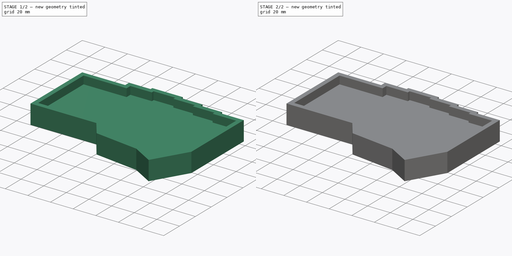
[diagram: build sequence overview — one tinted view per stage of 2, left to right]
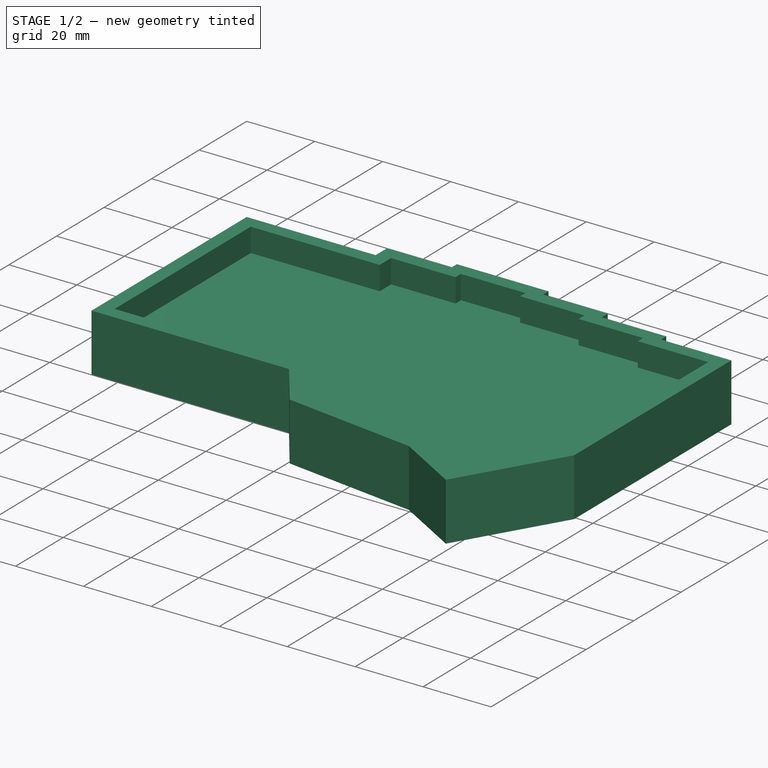
[diagram: stage 1 of 2 — iso view after this stage's code; geometry added in this stage tinted green]
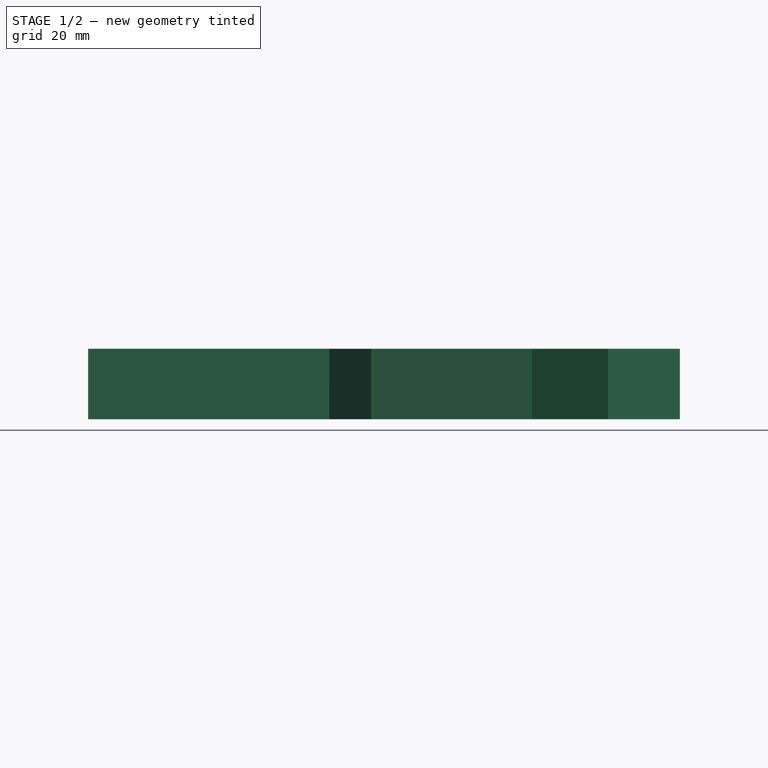
[diagram: stage 1 of 2 — front view after this stage's code; geometry added in this stage tinted green]
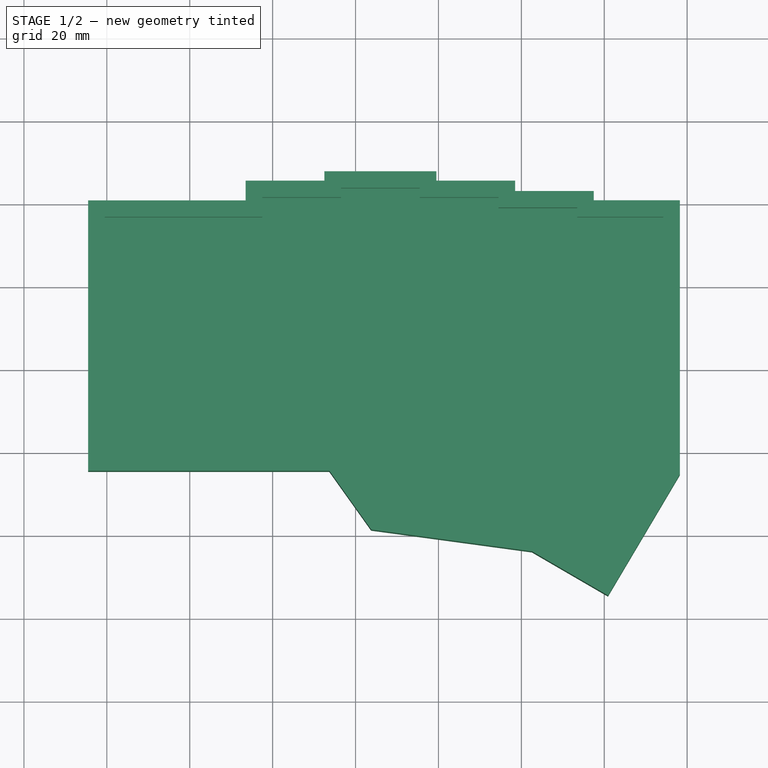
[diagram: stage 1 of 2 — top view after this stage's code; geometry added in this stage tinted green]
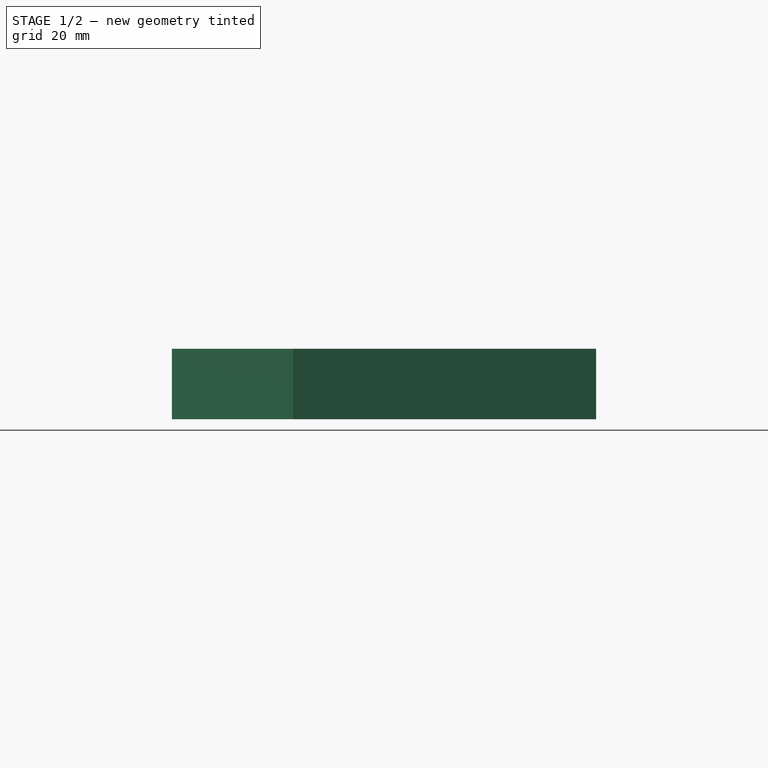
[diagram: stage 1 of 2 — right view after this stage's code; geometry added in this stage tinted green]
FCSTD DOCUMENT  (FreeCAD 0.21R33771 (Git))
Label: ParametricCase42
License: All rights reserved
LicenseURL: http://en.wikipedia.org/wiki/All_rights_reserved
objects: Sketcher::SketchObject×13, PartDesign::Body×3, Part::Part2DObjectPython×2, PartDesign::Pad×2, PartDesign::Pocket×2, Spreadsheet::Sheet×1, App::DocumentObjectGroup×1
note: 26 computed .brp shape members not serialized (recipe doc carries the construction recipe); baked Part::Feature solids carry a one-line shape summary decoded from their .brp

FEATURE [Sketcher::SketchObject] Sketch004  label="InnerBorder001"
  ExternalGeometry = -> [MirroredSketch017]
  FullyConstrained = true
  Placement = pos=(0,0,3.4) rot=(0,0,1;0rad)
  expr: .Placement.Base.z = Spreadsheet.PCBHeight + Spreadsheet.SwitchUnderPlateHeight - Spreadsheet.SwitchPlateHeight
  expr: Constraints[32] = Spreadsheet.PCBCaseSpacing
  expr: Constraints[33] = Spreadsheet.PCBCaseSpacing
  expr: Constraints[34] = Spreadsheet.PCBCaseSpacing
  expr: Constraints[35] = Spreadsheet.PCBCaseSpacing
  expr: Constraints[36] = Spreadsheet.PCBCaseSpacing
  expr: Constraints[37] = Spreadsheet.PCBCaseSpacing
  expr: Constraints[38] = Spreadsheet.PCBCaseSpacing
  expr: Constraints[39] = Spreadsheet.PCBCaseSpacing
  expr: Constraints[40] = Spreadsheet.PCBCaseSpacing
  expr: Constraints[41] = Spreadsheet.PCBCaseSpacing
  expr: Constraints[42] = Spreadsheet.PCBCaseSpacing
  expr: Constraints[43] = Spreadsheet.PCBCaseSpacing
  expr: Constraints[44] = Spreadsheet.PCBCaseSpacing
  expr: Constraints[45] = Spreadsheet.PCBCaseSpacing
  expr: Constraints[46] = Spreadsheet.PCBCaseSpacing
  expr: Constraints[47] = Spreadsheet.PCBCaseSpacing
  expr: Constraints[48] = Spreadsheet.PCBCaseSpacing
  expr: Constraints[49] = Spreadsheet.PCBCaseSpacing
  sketch-geometry (18):
    g0: LineSegment StartX=-0.5 StartY=56.75 StartZ=0 EndX=-0.5 EndY=-0.5 EndZ=0
    g1: LineSegment StartX=-0.5 StartY=-0.5 StartZ=0 EndX=55.4758 EndY=-0.5 EndZ=0
    g2: LineSegment StartX=55.4758 StartY=-0.5 StartZ=0 EndX=66.1812 EndY=-15.1753 EndZ=0
    g3: LineSegment StartX=66.1812 StartY=-15.1753 StartZ=0 EndX=103.799 EndY=-20.0677 EndZ=0
    g4: LineSegment StartX=103.799 StartY=-20.0677 StartZ=0 EndX=119.813 EndY=-29.3322 EndZ=0
    g5: LineSegment StartX=119.813 StartY=-29.3322 StartZ=0 EndX=134.23 EndY=-4.29099 EndZ=0
    g6: LineSegment StartX=134.23 StartY=-4.29099 StartZ=0 EndX=134.23 EndY=56.7527 EndZ=0
    g7: LineSegment StartX=134.23 StartY=56.7527 StartZ=0 EndX=113.48 EndY=56.7527 EndZ=0
    g8: LineSegment StartX=113.48 StartY=56.7527 StartZ=0 EndX=113.48 EndY=59.0027 EndZ=0
    g9: LineSegment StartX=113.48 StartY=59.0027 StartZ=0 EndX=94.49 EndY=59.0027 EndZ=0
    g10: LineSegment StartX=94.49 StartY=59.0027 StartZ=0 EndX=94.49 EndY=61.5027 EndZ=0
    g11: LineSegment StartX=94.49 StartY=61.5027 StartZ=0 EndX=75.49 EndY=61.5027 EndZ=0
    g12: LineSegment StartX=75.49 StartY=61.5027 StartZ=0 EndX=75.49 EndY=63.7527 EndZ=0
    g13: LineSegment StartX=75.49 StartY=63.7527 StartZ=0 EndX=56.49 EndY=63.7527 EndZ=0
    g14: LineSegment StartX=56.49 StartY=63.7527 StartZ=0 EndX=56.49 EndY=61.5027 EndZ=0
    g15: LineSegment StartX=56.49 StartY=61.5027 StartZ=0 EndX=37.48 EndY=61.5027 EndZ=0
    g16: LineSegment StartX=37.48 StartY=61.5027 StartZ=0 EndX=37.48 EndY=56.75 EndZ=0
    g17: LineSegment StartX=37.48 StartY=56.75 StartZ=0 EndX=-0.5 EndY=56.75 EndZ=0
  constraints (54):
    c: Coincident(g0,g1)
    c: Vertical(g0)
    c: Coincident(g1,g2)
    c: Horizontal(g1)
    c: Coincident(g2,g3)
    c: Coincident(g3,g4)
    c: Coincident(g4,g5)
    c: Coincident(g5,g6)
    c: Coincident(g6,g7)
    c: Vertical(g6)
    c: Coincident(g7,g8)
    c: Horizontal(g7)
    c: Coincident(g8,g9)
    c: Vertical(g8)
    c: Coincident(g9,g10)
    c: Horizontal(g9)
    c: Coincident(g10,g11)
    c: Vertical(g10)
    c: Coincident(g11,g12)
    c: Horizontal(g11)
    c: Coincident(g12,g13)
    c: Vertical(g12)
    c: Coincident(g13,g14)
    c: Horizontal(g13)
    c: Coincident(g14,g15)
    c: Vertical(g14)
    c: Coincident(g15,g16)
    c: Horizontal(g15)
    c: Coincident(g16,g17)
    c: Vertical(g16)
    c: Coincident(g17,g0)
    c: Horizontal(g17)
    c: Distance(g0,g-20) = 0.5
    c: Distance(g0,g-3) = 0.5
    c: Distance(g16,g-4) = 0.5
    c: Distance(g15,g-5) = 0.5
    c: Distance(g14,g-6) = 0.5
    c: Distance(g13,g-7) = 0.5
    c: Distance(g12,g-8) = 0.5
    c: Distance(g11,g-9) = 0.5
    c: Distance(g10,g-10) = 0.5
    c: Distance(g9,g-11) = 0.5
    c: Distance(g8,g-12) = 0.5
    c: Distance(g7,g-13) = 0.5
    c: Distance(g6,g-14) = 0.5
    c: Distance(g5,g-15) = 0.5
    c: Distance(g4,g-16) = 0.5
    c: Distance(g-17,g3) = 0.5
    c: Distance(g-18,g2) = 0.5
    c: Distance(g-19,g1) = 0.5
    c: Angle(g1,g2) = 2.20103
    c: Angle(g3,g2) = 2.33036
    c: Angle(g3,g4) = 2.74645
    c: Angle(g5,g4) = 1.5687
FEATURE [Sketcher::SketchObject] Sketch005  label="InnerBorder002"
  ExternalGeometry = -> [MirroredSketch017]
  FullyConstrained = true
  expr: Constraints[32] = Spreadsheet.PCBCaseSpacing
  expr: Constraints[33] = Spreadsheet.PCBCaseSpacing
  expr: Constraints[34] = Spreadsheet.PCBCaseSpacing
  expr: Constraints[35] = Spreadsheet.PCBCaseSpacing
  expr: Constraints[36] = Spreadsheet.PCBCaseSpacing
  expr: Constraints[37] = Spreadsheet.PCBCaseSpacing
  expr: Constraints[38] = Spreadsheet.PCBCaseSpacing
  expr: Constraints[39] = Spreadsheet.PCBCaseSpacing
  expr: Constraints[40] = Spreadsheet.PCBCaseSpacing
  expr: Constraints[41] = Spreadsheet.PCBCaseSpacing
  expr: Constraints[42] = Spreadsheet.PCBCaseSpacing
  expr: Constraints[43] = Spreadsheet.PCBCaseSpacing
  expr: Constraints[44] = Spreadsheet.PCBCaseSpacing
  expr: Constraints[45] = Spreadsheet.PCBCaseSpacing
  expr: Constraints[46] = Spreadsheet.PCBCaseSpacing
  expr: Constraints[47] = Spreadsheet.PCBCaseSpacing
  expr: Constraints[48] = Spreadsheet.PCBCaseSpacing
  expr: Constraints[49] = Spreadsheet.PCBCaseSpacing
  sketch-geometry (18):
    g0: LineSegment StartX=-0.5 StartY=56.75 StartZ=0 EndX=-0.5 EndY=-0.5 EndZ=0
    g1: LineSegment StartX=-0.5 StartY=-0.5 StartZ=0 EndX=55.4758 EndY=-0.5 EndZ=0
    g2: LineSegment StartX=55.4758 StartY=-0.5 StartZ=0 EndX=66.1812 EndY=-15.1753 EndZ=0
    g3: LineSegment StartX=66.1812 StartY=-15.1753 StartZ=0 EndX=103.799 EndY=-20.0677 EndZ=0
    g4: LineSegment StartX=103.799 StartY=-20.0677 StartZ=0 EndX=119.813 EndY=-29.3322 EndZ=0
    g5: LineSegment StartX=119.813 StartY=-29.3322 StartZ=0 EndX=134.23 EndY=-4.29099 EndZ=0
    g6: LineSegment StartX=134.23 StartY=-4.29099 StartZ=0 EndX=134.23 EndY=56.7527 EndZ=0
    g7: LineSegment StartX=134.23 StartY=56.7527 StartZ=0 EndX=113.48 EndY=56.7527 EndZ=0
    g8: LineSegment StartX=113.48 StartY=56.7527 StartZ=0 EndX=113.48 EndY=59.0027 EndZ=0
    g9: LineSegment StartX=113.48 StartY=59.0027 StartZ=0 EndX=94.49 EndY=59.0027 EndZ=0
    g10: LineSegment StartX=94.49 StartY=59.0027 StartZ=0 EndX=94.49 EndY=61.5027 EndZ=0
    g11: LineSegment StartX=94.49 StartY=61.5027 StartZ=0 EndX=75.49 EndY=61.5027 EndZ=0
    g12: LineSegment StartX=75.49 StartY=61.5027 StartZ=0 EndX=75.49 EndY=63.7527 EndZ=0
    g13: LineSegment StartX=75.49 StartY=63.7527 StartZ=0 EndX=56.49 EndY=63.7527 EndZ=0
    g14: LineSegment StartX=56.49 StartY=63.7527 StartZ=0 EndX=56.49 EndY=61.5027 EndZ=0
    g15: LineSegment StartX=56.49 StartY=61.5027 StartZ=0 EndX=37.48 EndY=61.5027 EndZ=0
    g16: LineSegment StartX=37.48 StartY=61.5027 StartZ=0 EndX=37.48 EndY=56.75 EndZ=0
    g17: LineSegment StartX=37.48 StartY=56.75 StartZ=0 EndX=-0.5 EndY=56.75 EndZ=0
  constraints (54):
    c: Coincident(g0,g1)
    c: Vertical(g0)
    c: Coincident(g1,g2)
    c: Horizontal(g1)
    c: Coincident(g2,g3)
    c: Coincident(g3,g4)
    c: Coincident(g4,g5)
    c: Coincident(g5,g6)
    c: Coincident(g6,g7)
    c: Vertical(g6)
    c: Coincident(g7,g8)
    c: Horizontal(g7)
    c: Coincident(g8,g9)
    c: Vertical(g8)
    c: Coincident(g9,g10)
    c: Horizontal(g9)
    c: Coincident(g10,g11)
    c: Vertical(g10)
    c: Coincident(g11,g12)
    c: Horizontal(g11)
    c: Coincident(g12,g13)
    c: Vertical(g12)
    c: Coincident(g13,g14)
    c: Horizontal(g13)
    c: Coincident(g14,g15)
    c: Vertical(g14)
    c: Coincident(g15,g16)
    c: Horizontal(g15)
    c: Coincident(g16,g17)
    c: Vertical(g16)
    c: Coincident(g17,g0)
    c: Horizontal(g17)
    c: Distance(g0,g-20) = 0.5
    c: Distance(g0,g-3) = 0.5
    c: Distance(g16,g-4) = 0.5
    c: Distance(g15,g-5) = 0.5
    c: Distance(g14,g-6) = 0.5
    c: Distance(g13,g-7) = 0.5
    c: Distance(g12,g-8) = 0.5
    c: Distance(g11,g-9) = 0.5
    c: Distance(g10,g-10) = 0.5
    c: Distance(g9,g-11) = 0.5
    c: Distance(g8,g-12) = 0.5
    c: Distance(g7,g-13) = 0.5
    c: Distance(g6,g-14) = 0.5
    c: Distance(g5,g-15) = 0.5
    c: Distance(g4,g-16) = 0.5
    c: Distance(g-17,g3) = 0.5
    c: Distance(g-18,g2) = 0.5
    c: Distance(g-19,g1) = 0.5
    c: Angle(g1,g2) = 2.20103
    c: Angle(g3,g2) = 2.33036
    c: Angle(g3,g4) = 2.74645
    c: Angle(g5,g4) = 1.5687
FEATURE [PartDesign::Body] Body  label="PCB"
  Group = -> [MirroredSketch017,Pad,Sketch005]
  Origin = -> Origin
  Tip = -> Pad
FEATURE [Sketcher::SketchObject] MirroredSketch019  label="Pcb001"
  FullyConstrained = true
  MapMode = 2
  sketch-geometry (18):
    g0: LineSegment StartX=0 StartY=56.25 StartZ=0 EndX=0 EndY=0 EndZ=0
    g1: LineSegment StartX=0 StartY=0 StartZ=0 EndX=55.73 EndY=0 EndZ=0
    g2: LineSegment StartX=55.73 StartY=0 StartZ=0 EndX=66.4586 EndY=-14.7072 EndZ=0
    g3: LineSegment StartX=66.4586 StartY=-14.7072 StartZ=0 EndX=103.963 EndY=-19.5848 EndZ=0
    g4: LineSegment StartX=103.963 StartY=-19.5848 StartZ=0 EndX=119.63 EndY=-28.6485 EndZ=0
    g5: LineSegment StartX=119.63 StartY=-28.6485 StartZ=0 EndX=133.73 EndY=-4.15734 EndZ=0
    g6: LineSegment StartX=133.73 StartY=-4.15734 StartZ=0 EndX=133.73 EndY=56.2527 EndZ=0
    g7: LineSegment StartX=133.73 StartY=56.2527 StartZ=0 EndX=112.98 EndY=56.2527 EndZ=0
    g8: LineSegment StartX=112.98 StartY=56.2527 StartZ=0 EndX=112.98 EndY=58.5027 EndZ=0
    g9: LineSegment StartX=112.98 StartY=58.5027 StartZ=0 EndX=93.99 EndY=58.5027 EndZ=0
    g10: LineSegment StartX=93.99 StartY=58.5027 StartZ=0 EndX=93.99 EndY=61.0027 EndZ=0
    g11: LineSegment StartX=93.99 StartY=61.0027 StartZ=0 EndX=74.99 EndY=61.0027 EndZ=0
    g12: LineSegment StartX=74.99 StartY=61.0027 StartZ=0 EndX=74.99 EndY=63.2527 EndZ=0
    g13: LineSegment StartX=74.99 StartY=63.2527 StartZ=0 EndX=56.99 EndY=63.2527 EndZ=0
    g14: LineSegment StartX=56.99 StartY=63.2527 StartZ=0 EndX=56.99 EndY=61.0027 EndZ=0
    g15: LineSegment StartX=56.99 StartY=61.0027 StartZ=0 EndX=37.98 EndY=61.0027 EndZ=0
    g16: LineSegment StartX=37.98 StartY=61.0027 StartZ=0 EndX=37.98 EndY=56.25 EndZ=0
    g17: LineSegment StartX=37.98 StartY=56.25 StartZ=0 EndX=0 EndY=56.25 EndZ=0
  constraints (54):
    c: Horizontal(g1)
    c: Vertical(g0)
    c: Coincident(g1,g0)
    c: Coincident(g1,g2)
    c: Coincident(g2,g3)
    c: Coincident(g3,g4)
    c: Coincident(g5,g4)
    c: Coincident(g5,g6)
    c: Coincident(g6,g7)
    c: Coincident(g7,g8)
    c: Coincident(g8,g9)
    c: Coincident(g10,g11)
    c: Coincident(g10,g9)
    c: Coincident(g12,g11)
    c: Coincident(g12,g13)
    c: Coincident(g13,g14)
    c: Coincident(g14,g15)
    c: Coincident(g15,g16)
    c: Coincident(g16,g17)
    c: Coincident(g17,g0)
    c: Vertical(g6)
    c: Horizontal(g7)
    c: Horizontal(g9)
    c: Horizontal(g11)
    c: Horizontal(g13)
    c: Horizontal(g15)
    c: Horizontal(g17)
    c: Vertical(g16)
    c: Vertical(g14)
    c: Vertical(g12)
    c: Vertical(g10)
    c: Vertical(g8)
    c: Angle(g5,g6) = -2.61922
    c: Angle(g4,g5) = -1.5687
    c: Angle(g4,g3) = -2.74645
    c: Angle(g2,g3) = -2.33036
    c: Distance(g1) = 55.73
    c: Distance(g0) = 56.25
    c: Distance(g17) = 37.98
    c: Distance(g15) = 19.01
    c: Distance(g13) = 18
    c: Distance(g11) = 19
    c: Distance(g9) = 18.99
    c: Distance(g7) = 20.75
    c: Distance(g6) = 60.41
    c: Distance(g5) = 28.26
    c: Distance(g4) = 18.1
    c: Distance(g3) = 37.82
    c: Distance(g8) = 2.25
    c: Distance(g10) = 2.5
    c: Distance(g12) = 2.25
    c: Distance(g14) = 2.25
    c: DistanceX(g-2,g0) = 0
    c: DistanceY(g-1,g0) = 0
FEATURE [Sketcher::SketchObject] Sketch006  label="InnerBorder003"
  ExternalGeometry = -> [MirroredSketch019]
  FullyConstrained = true
  Placement = pos=(0,0,17) rot=(0,0,1;0rad)
  expr: .Placement.Base.z = Spreadsheet.CaseOverallHeight
  expr: Constraints[32] = Spreadsheet.PCBCaseSpacing
  expr: Constraints[33] = Spreadsheet.PCBCaseSpacing
  expr: Constraints[34] = Spreadsheet.PCBCaseSpacing
  expr: Constraints[35] = Spreadsheet.PCBCaseSpacing
  expr: Constraints[36] = Spreadsheet.PCBCaseSpacing
  expr: Constraints[37] = Spreadsheet.PCBCaseSpacing
  expr: Constraints[38] = Spreadsheet.PCBCaseSpacing
  expr: Constraints[39] = Spreadsheet.PCBCaseSpacing
  expr: Constraints[40] = Spreadsheet.PCBCaseSpacing
  expr: Constraints[41] = Spreadsheet.PCBCaseSpacing
  expr: Constraints[42] = Spreadsheet.PCBCaseSpacing
  expr: Constraints[43] = Spreadsheet.PCBCaseSpacing
  expr: Constraints[44] = Spreadsheet.PCBCaseSpacing
  expr: Constraints[45] = Spreadsheet.PCBCaseSpacing
  expr: Constraints[46] = Spreadsheet.PCBCaseSpacing
  expr: Constraints[47] = Spreadsheet.PCBCaseSpacing
  expr: Constraints[48] = Spreadsheet.PCBCaseSpacing
  expr: Constraints[49] = Spreadsheet.PCBCaseSpacing
  sketch-geometry (18):
    g0: LineSegment StartX=-0.5 StartY=56.75 StartZ=0 EndX=-0.5 EndY=-0.5 EndZ=0
    g1: LineSegment StartX=-0.5 StartY=-0.5 StartZ=0 EndX=55.4758 EndY=-0.5 EndZ=0
    g2: LineSegment StartX=55.4758 StartY=-0.5 StartZ=0 EndX=66.1812 EndY=-15.1753 EndZ=0
    g3: LineSegment StartX=66.1812 StartY=-15.1753 StartZ=0 EndX=103.799 EndY=-20.0677 EndZ=0
    g4: LineSegment StartX=103.799 StartY=-20.0677 StartZ=0 EndX=119.813 EndY=-29.3322 EndZ=0
    g5: LineSegment StartX=119.813 StartY=-29.3322 StartZ=0 EndX=134.23 EndY=-4.29099 EndZ=0
    g6: LineSegment StartX=134.23 StartY=-4.29099 StartZ=0 EndX=134.23 EndY=56.7527 EndZ=0
    g7: LineSegment StartX=134.23 StartY=56.7527 StartZ=0 EndX=113.48 EndY=56.7527 EndZ=0
    g8: LineSegment StartX=113.48 StartY=56.7527 StartZ=0 EndX=113.48 EndY=59.0027 EndZ=0
    g9: LineSegment StartX=113.48 StartY=59.0027 StartZ=0 EndX=94.49 EndY=59.0027 EndZ=0
    g10: LineSegment StartX=94.49 StartY=59.0027 StartZ=0 EndX=94.49 EndY=61.5027 EndZ=0
    g11: LineSegment StartX=94.49 StartY=61.5027 StartZ=0 EndX=75.49 EndY=61.5027 EndZ=0
    g12: LineSegment StartX=75.49 StartY=61.5027 StartZ=0 EndX=75.49 EndY=63.7527 EndZ=0
    g13: LineSegment StartX=75.49 StartY=63.7527 StartZ=0 EndX=56.49 EndY=63.7527 EndZ=0
    g14: LineSegment StartX=56.49 StartY=63.7527 StartZ=0 EndX=56.49 EndY=61.5027 EndZ=0
    g15: LineSegment StartX=56.49 StartY=61.5027 StartZ=0 EndX=37.48 EndY=61.5027 EndZ=0
    g16: LineSegment StartX=37.48 StartY=61.5027 StartZ=0 EndX=37.48 EndY=56.75 EndZ=0
    g17: LineSegment StartX=37.48 StartY=56.75 StartZ=0 EndX=-0.5 EndY=56.75 EndZ=0
  constraints (54):
    c: Coincident(g0,g1)
    c: Vertical(g0)
    c: Coincident(g1,g2)
    c: Horizontal(g1)
    c: Coincident(g2,g3)
    c: Coincident(g3,g4)
    c: Coincident(g4,g5)
    c: Coincident(g5,g6)
    c: Coincident(g6,g7)
    c: Vertical(g6)
    c: Coincident(g7,g8)
    c: Horizontal(g7)
    c: Coincident(g8,g9)
    c: Vertical(g8)
    c: Coincident(g9,g10)
    c: Horizontal(g9)
    c: Coincident(g10,g11)
    c: Vertical(g10)
    c: Coincident(g11,g12)
    c: Horizontal(g11)
    c: Coincident(g12,g13)
    c: Vertical(g12)
    c: Coincident(g13,g14)
    c: Horizontal(g13)
    c: Coincident(g14,g15)
    c: Vertical(g14)
    c: Coincident(g15,g16)
    c: Horizontal(g15)
    c: Coincident(g16,g17)
    c: Vertical(g16)
    c: Coincident(g17,g0)
    c: Horizontal(g17)
    c: Distance(g0,g-20) = 0.5
    c: Distance(g0,g-3) = 0.5
    c: Distance(g16,g-4) = 0.5
    c: Distance(g15,g-5) = 0.5
    c: Distance(g14,g-6) = 0.5
    c: Distance(g13,g-7) = 0.5
    c: Distance(g12,g-8) = 0.5
    c: Distance(g11,g-9) = 0.5
    c: Distance(g10,g-10) = 0.5
    c: Distance(g9,g-11) = 0.5
    c: Distance(g8,g-12) = 0.5
    c: Distance(g7,g-13) = 0.5
    c: Distance(g6,g-14) = 0.5
    c: Distance(g5,g-15) = 0.5
    c: Distance(g4,g-16) = 0.5
    c: Distance(g-17,g3) = 0.5
    c: Distance(g-18,g2) = 0.5
    c: Distance(g-19,g1) = 0.5
    c: Angle(g1,g2) = 2.20103
    c: Angle(g3,g2) = 2.33036
    c: Angle(g3,g4) = 2.74645
    c: Angle(g5,g4) = 1.5687
FEATURE [Sketcher::SketchObject] Sketch007  label="OuterBorder001"
  ExternalGeometry = -> [Sketch006]
  FullyConstrained = true
  expr: Constraints[32] = Spreadsheet.CaseBorderWidth
  expr: Constraints[33] = Spreadsheet.CaseBorderWidth
  expr: Constraints[34] = Spreadsheet.CaseBorderWidth
  expr: Constraints[35] = Spreadsheet.CaseBorderWidth
  expr: Constraints[36] = Spreadsheet.CaseBorderWidth
  expr: Constraints[37] = Spreadsheet.CaseBorderWidth
  expr: Constraints[38] = Spreadsheet.CaseBorderWidth
  expr: Constraints[39] = Spreadsheet.CaseBorderWidth
  expr: Constraints[40] = Spreadsheet.CaseBorderWidth
  expr: Constraints[41] = Spreadsheet.CaseBorderWidth
  expr: Constraints[42] = Spreadsheet.CaseBorderWidth
  expr: Constraints[43] = Spreadsheet.CaseBorderWidth
  expr: Constraints[44] = Spreadsheet.CaseBorderWidth
  expr: Constraints[45] = Spreadsheet.CaseBorderWidth
  expr: Constraints[46] = Spreadsheet.CaseBorderWidth
  expr: Constraints[47] = Spreadsheet.CaseBorderWidth
  expr: Constraints[48] = Spreadsheet.CaseBorderWidth
  expr: Constraints[49] = Spreadsheet.CaseBorderWidth
  sketch-geometry (18):
    g0: LineSegment StartX=-4.5 StartY=60.75 StartZ=0 EndX=-4.5 EndY=-4.5 EndZ=0
    g1: LineSegment StartX=-4.5 StartY=-4.5 StartZ=0 EndX=53.6669 EndY=-4.5 EndZ=0
    g2: LineSegment StartX=53.6669 StartY=-4.5 StartZ=0 EndX=63.7645 EndY=-18.6772 EndZ=0
    g3: LineSegment StartX=63.7645 StartY=-18.6772 StartZ=0 EndX=102.56 EndY=-23.9363 EndZ=0
    g4: LineSegment StartX=102.56 StartY=-23.9363 StartZ=0 EndX=120.907 EndY=-34.5933 EndZ=0
    g5: LineSegment StartX=120.907 StartY=-34.5933 StartZ=0 EndX=138.23 EndY=-5.36017 EndZ=0
    g6: LineSegment StartX=138.23 StartY=-5.36017 StartZ=0 EndX=138.23 EndY=60.7527 EndZ=0
    g7: LineSegment StartX=138.23 StartY=60.7527 StartZ=0 EndX=117.48 EndY=60.7527 EndZ=0
    g8: LineSegment StartX=117.48 StartY=60.7527 StartZ=0 EndX=117.48 EndY=63.0027 EndZ=0
    g9: LineSegment StartX=117.48 StartY=63.0027 StartZ=0 EndX=98.49 EndY=63.0027 EndZ=0
    g10: LineSegment StartX=98.49 StartY=63.0027 StartZ=0 EndX=98.49 EndY=65.5027 EndZ=0
    g11: LineSegment StartX=98.49 StartY=65.5027 StartZ=0 EndX=79.49 EndY=65.5027 EndZ=0
    g12: LineSegment StartX=79.49 StartY=65.5027 StartZ=0 EndX=79.49 EndY=67.7527 EndZ=0
    g13: LineSegment StartX=79.49 StartY=67.7527 StartZ=0 EndX=52.49 EndY=67.7527 EndZ=0
    g14: LineSegment StartX=52.49 StartY=67.7527 StartZ=0 EndX=52.49 EndY=65.5027 EndZ=0
    g15: LineSegment StartX=52.49 StartY=65.5027 StartZ=0 EndX=33.48 EndY=65.5027 EndZ=0
    g16: LineSegment StartX=33.48 StartY=65.5027 StartZ=0 EndX=33.48 EndY=60.75 EndZ=0
    g17: LineSegment StartX=33.48 StartY=60.75 StartZ=0 EndX=-4.5 EndY=60.75 EndZ=0
  constraints (54):
    c: Coincident(g0,g1)
    c: Vertical(g0)
    c: Coincident(g1,g2)
    c: Horizontal(g1)
    c: Coincident(g2,g3)
    c: Coincident(g3,g4)
    c: Coincident(g4,g5)
    c: Coincident(g5,g6)
    c: Coincident(g6,g7)
    c: Vertical(g6)
    c: Coincident(g7,g8)
    c: Horizontal(g7)
    c: Coincident(g8,g9)
    c: Vertical(g8)
    c: Coincident(g9,g10)
    c: Horizontal(g9)
    c: Coincident(g10,g11)
    c: Vertical(g10)
    c: Coincident(g11,g12)
    c: Horizontal(g11)
    c: Coincident(g12,g13)
    c: Vertical(g12)
    c: Coincident(g13,g14)
    c: Horizontal(g13)
    c: Coincident(g14,g15)
    c: Vertical(g14)
    c: Coincident(g15,g16)
    c: Horizontal(g15)
    c: Coincident(g16,g17)
    c: Vertical(g16)
    c: Coincident(g17,g0)
    c: Horizontal(g17)
    c: Distance(g0,g-3) = 4
    c: Distance(g0,g-20) = 4
    c: Distance(g16,g-4) = 4
    c: Distance(g15,g-5) = 4
    c: Distance(g14,g-6) = 4
    c: Distance(g13,g-7) = 4
    c: Distance(g11,g-8) = 4
    c: Distance(g11,g-9) = 4
    c: Distance(g10,g-10) = 4
    c: Distance(g9,g-11) = 4
    c: Distance(g-12,g8) = 4
    c: Distance(g7,g-13) = 4
    c: Distance(g6,g-14) = 4
    c: Distance(g5,g-15) = 4
    c: Distance(g-16,g4) = 4
    c: Distance(g-17,g3) = 4
    c: Distance(g-18,g2) = 4
    c: Distance(g-19,g1) = 4
    c: Angle(g6,g5) = 2.60665
    c: Angle(g5,g4) = 1.57952
    c: Angle(g3,g4) = 2.75012
    c: Angle(g3,g2) = 2.32443
FEATURE [PartDesign::Pad] Pad002
  Direction = (0,0,1)
  Length = 17
  Length2 = 10
  Profile = -> Sketch007
  ReferenceAxis = -> Sketch007 [N_Axis]
  Type = 0
  expr: Length = Spreadsheet.CaseOverallHeight
FEATURE [Sketcher::SketchObject] Sketch008  label="InnerBorder004"
  ExternalGeometry = -> [MirroredSketch019]
  FullyConstrained = true
  expr: Constraints[32] = Spreadsheet.PCBCaseSpacing
  expr: Constraints[33] = Spreadsheet.PCBCaseSpacing
  expr: Constraints[34] = Spreadsheet.PCBCaseSpacing
  expr: Constraints[35] = Spreadsheet.PCBCaseSpacing
  expr: Constraints[36] = Spreadsheet.PCBCaseSpacing
  expr: Constraints[37] = Spreadsheet.PCBCaseSpacing
  expr: Constraints[38] = Spreadsheet.PCBCaseSpacing
  expr: Constraints[39] = Spreadsheet.PCBCaseSpacing
  expr: Constraints[40] = Spreadsheet.PCBCaseSpacing
  expr: Constraints[41] = Spreadsheet.PCBCaseSpacing
  expr: Constraints[42] = Spreadsheet.PCBCaseSpacing
  expr: Constraints[43] = Spreadsheet.PCBCaseSpacing
  expr: Constraints[44] = Spreadsheet.PCBCaseSpacing
  expr: Constraints[45] = Spreadsheet.PCBCaseSpacing
  expr: Constraints[46] = Spreadsheet.PCBCaseSpacing
  expr: Constraints[47] = Spreadsheet.PCBCaseSpacing
  expr: Constraints[48] = Spreadsheet.PCBCaseSpacing
  expr: Constraints[49] = Spreadsheet.PCBCaseSpacing
  sketch-geometry (18):
    g0: LineSegment StartX=-0.5 StartY=56.75 StartZ=0 EndX=-0.5 EndY=-0.5 EndZ=0
    g1: LineSegment StartX=-0.5 StartY=-0.5 StartZ=0 EndX=55.4758 EndY=-0.5 EndZ=0
    g2: LineSegment StartX=55.4758 StartY=-0.5 StartZ=0 EndX=66.1812 EndY=-15.1753 EndZ=0
    g3: LineSegment StartX=66.1812 StartY=-15.1753 StartZ=0 EndX=103.799 EndY=-20.0677 EndZ=0
    g4: LineSegment StartX=103.799 StartY=-20.0677 StartZ=0 EndX=119.813 EndY=-29.3322 EndZ=0
    g5: LineSegment StartX=119.813 StartY=-29.3322 StartZ=0 EndX=134.23 EndY=-4.29099 EndZ=0
    g6: LineSegment StartX=134.23 StartY=-4.29099 StartZ=0 EndX=134.23 EndY=56.7527 EndZ=0
    g7: LineSegment StartX=134.23 StartY=56.7527 StartZ=0 EndX=113.48 EndY=56.7527 EndZ=0
    g8: LineSegment StartX=113.48 StartY=56.7527 StartZ=0 EndX=113.48 EndY=59.0027 EndZ=0
    g9: LineSegment StartX=113.48 StartY=59.0027 StartZ=0 EndX=94.49 EndY=59.0027 EndZ=0
    g10: LineSegment StartX=94.49 StartY=59.0027 StartZ=0 EndX=94.49 EndY=61.5027 EndZ=0
    g11: LineSegment StartX=94.49 StartY=61.5027 StartZ=0 EndX=75.49 EndY=61.5027 EndZ=0
    g12: LineSegment StartX=75.49 StartY=61.5027 StartZ=0 EndX=75.49 EndY=63.7527 EndZ=0
    g13: LineSegment StartX=75.49 StartY=63.7527 StartZ=0 EndX=56.49 EndY=63.7527 EndZ=0
    g14: LineSegment StartX=56.49 StartY=63.7527 StartZ=0 EndX=56.49 EndY=61.5027 EndZ=0
    g15: LineSegment StartX=56.49 StartY=61.5027 StartZ=0 EndX=37.48 EndY=61.5027 EndZ=0
    g16: LineSegment StartX=37.48 StartY=61.5027 StartZ=0 EndX=37.48 EndY=56.75 EndZ=0
    g17: LineSegment StartX=37.48 StartY=56.75 StartZ=0 EndX=-0.5 EndY=56.75 EndZ=0
  constraints (54):
    c: Coincident(g0,g1)
    c: Vertical(g0)
    c: Coincident(g1,g2)
    c: Horizontal(g1)
    c: Coincident(g2,g3)
    c: Coincident(g3,g4)
    c: Coincident(g4,g5)
    c: Coincident(g5,g6)
    c: Coincident(g6,g7)
    c: Vertical(g6)
    c: Coincident(g7,g8)
    c: Horizontal(g7)
    c: Coincident(g8,g9)
    c: Vertical(g8)
    c: Coincident(g9,g10)
    c: Horizontal(g9)
    c: Coincident(g10,g11)
    c: Vertical(g10)
    c: Coincident(g11,g12)
    c: Horizontal(g11)
    c: Coincident(g12,g13)
    c: Vertical(g12)
    c: Coincident(g13,g14)
    c: Horizontal(g13)
    c: Coincident(g14,g15)
    c: Vertical(g14)
    c: Coincident(g15,g16)
    c: Horizontal(g15)
    c: Coincident(g16,g17)
    c: Vertical(g16)
    c: Coincident(g17,g0)
    c: Horizontal(g17)
    c: Distance(g0,g-20) = 0.5
    c: Distance(g0,g-3) = 0.5
    c: Distance(g16,g-4) = 0.5
    c: Distance(g15,g-5) = 0.5
    c: Distance(g14,g-6) = 0.5
    c: Distance(g13,g-7) = 0.5
    c: Distance(g12,g-8) = 0.5
    c: Distance(g11,g-9) = 0.5
    c: Distance(g10,g-10) = 0.5
    c: Distance(g9,g-11) = 0.5
    c: Distance(g8,g-12) = 0.5
    c: Distance(g7,g-13) = 0.5
    c: Distance(g6,g-14) = 0.5
    c: Distance(g5,g-15) = 0.5
    c: Distance(g4,g-16) = 0.5
    c: Distance(g-17,g3) = 0.5
    c: Distance(g-18,g2) = 0.5
    c: Distance(g-19,g1) = 0.5
    c: Angle(g1,g2) = 2.20103
    c: Angle(g3,g2) = 2.33036
    c: Angle(g3,g4) = 2.74645
    c: Angle(g5,g4) = 1.5687
FEATURE [PartDesign::Pocket] Pocket
  BaseFeature = -> Pad002
  Direction = (0,0,-1)
  Length = 7
  Length2 = 5
  Profile = -> Sketch006
  ReferenceAxis = -> Sketch006 [N_Axis]
  Type = 0
  expr: Length = Spreadsheet.CaseTopBorder
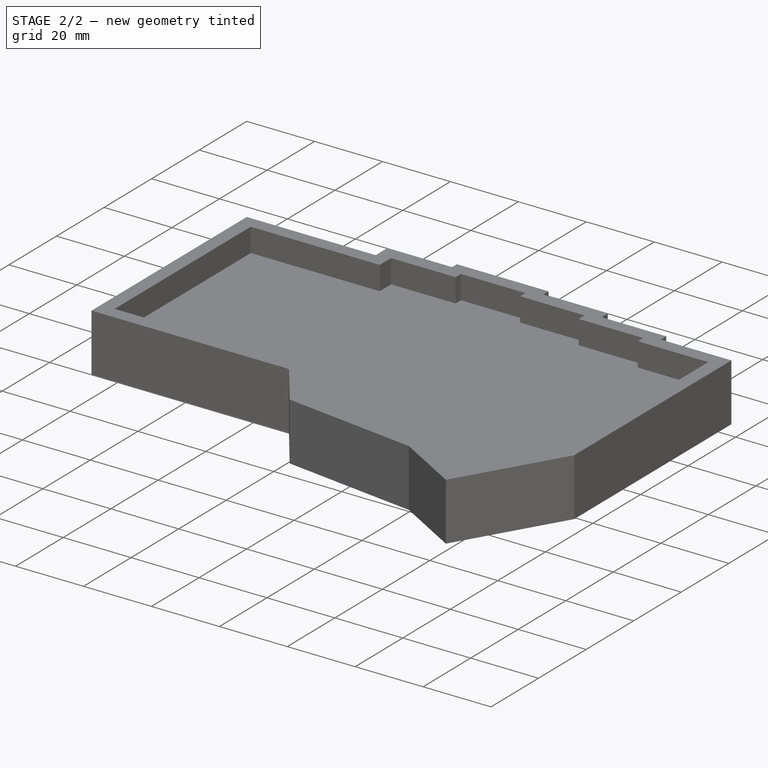
[diagram: stage 2 of 2 — iso view after this stage's code; geometry added in this stage tinted green]
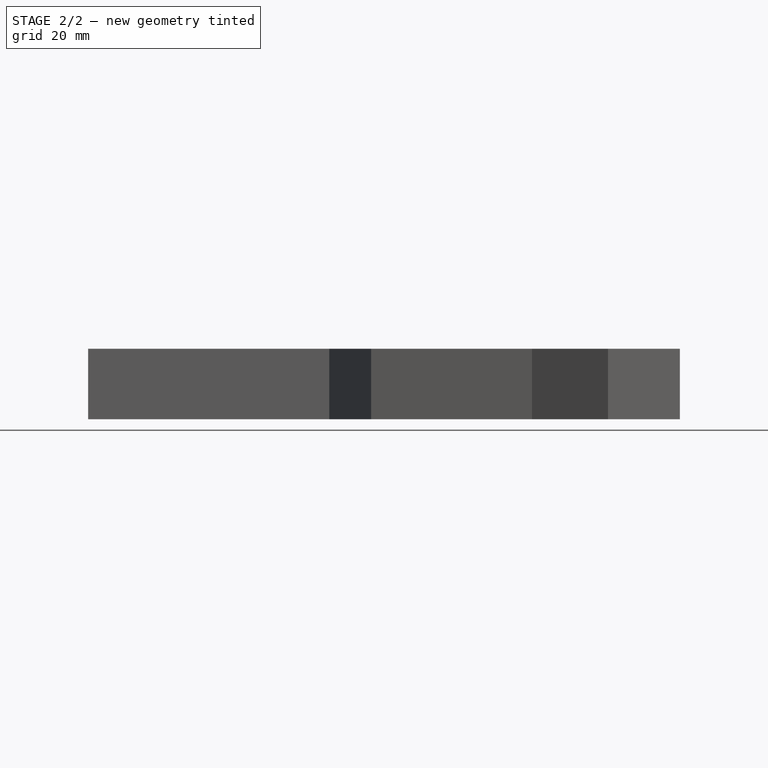
[diagram: stage 2 of 2 — front view after this stage's code; geometry added in this stage tinted green]
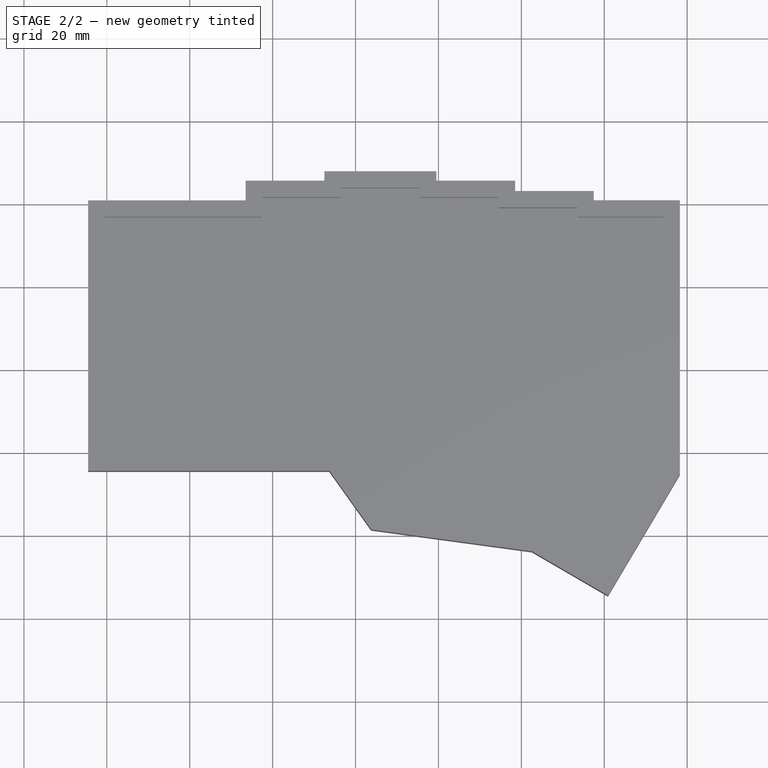
[diagram: stage 2 of 2 — top view after this stage's code; geometry added in this stage tinted green]
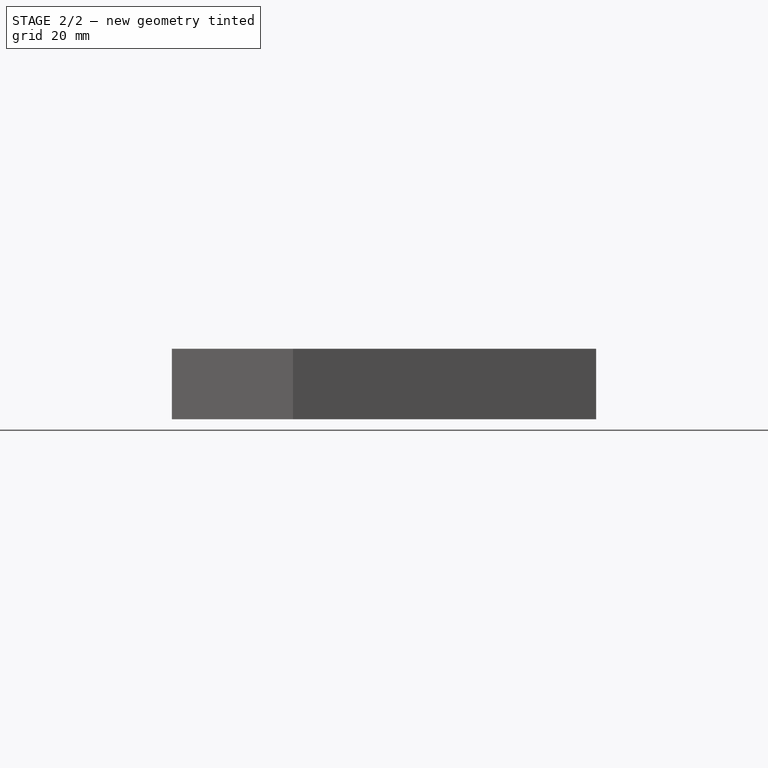
[diagram: stage 2 of 2 — right view after this stage's code; geometry added in this stage tinted green]
FEATURE [Sketcher::SketchObject] MirroredSketch017  label="Pcb"
  FullyConstrained = true
  MapMode = 2
  sketch-geometry (18):
    g0: LineSegment StartX=0 StartY=56.25 StartZ=0 EndX=0 EndY=0 EndZ=0
    g1: LineSegment StartX=0 StartY=0 StartZ=0 EndX=55.73 EndY=0 EndZ=0
    g2: LineSegment StartX=55.73 StartY=0 StartZ=0 EndX=66.4586 EndY=-14.7072 EndZ=0
    g3: LineSegment StartX=66.4586 StartY=-14.7072 StartZ=0 EndX=103.963 EndY=-19.5848 EndZ=0
    g4: LineSegment StartX=103.963 StartY=-19.5848 StartZ=0 EndX=119.63 EndY=-28.6485 EndZ=0
    g5: LineSegment StartX=119.63 StartY=-28.6485 StartZ=0 EndX=133.73 EndY=-4.15734 EndZ=0
    g6: LineSegment StartX=133.73 StartY=-4.15734 StartZ=0 EndX=133.73 EndY=56.2527 EndZ=0
    g7: LineSegment StartX=133.73 StartY=56.2527 StartZ=0 EndX=112.98 EndY=56.2527 EndZ=0
    g8: LineSegment StartX=112.98 StartY=56.2527 StartZ=0 EndX=112.98 EndY=58.5027 EndZ=0
    g9: LineSegment StartX=112.98 StartY=58.5027 StartZ=0 EndX=93.99 EndY=58.5027 EndZ=0
    g10: LineSegment StartX=93.99 StartY=58.5027 StartZ=0 EndX=93.99 EndY=61.0027 EndZ=0
    g11: LineSegment StartX=93.99 StartY=61.0027 StartZ=0 EndX=74.99 EndY=61.0027 EndZ=0
    g12: LineSegment StartX=74.99 StartY=61.0027 StartZ=0 EndX=74.99 EndY=63.2527 EndZ=0
    g13: LineSegment StartX=74.99 StartY=63.2527 StartZ=0 EndX=56.99 EndY=63.2527 EndZ=0
    g14: LineSegment StartX=56.99 StartY=63.2527 StartZ=0 EndX=56.99 EndY=61.0027 EndZ=0
    g15: LineSegment StartX=56.99 StartY=61.0027 StartZ=0 EndX=37.98 EndY=61.0027 EndZ=0
    g16: LineSegment StartX=37.98 StartY=61.0027 StartZ=0 EndX=37.98 EndY=56.25 EndZ=0
    g17: LineSegment StartX=37.98 StartY=56.25 StartZ=0 EndX=0 EndY=56.25 EndZ=0
  constraints (54):
    c: Horizontal(g1)
    c: Vertical(g0)
    c: Coincident(g1,g0)
    c: Coincident(g1,g2)
    c: Coincident(g2,g3)
    c: Coincident(g3,g4)
    c: Coincident(g5,g4)
    c: Coincident(g5,g6)
    c: Coincident(g6,g7)
    c: Coincident(g7,g8)
    c: Coincident(g8,g9)
    c: Coincident(g10,g11)
    c: Coincident(g10,g9)
    c: Coincident(g12,g11)
    c: Coincident(g12,g13)
    c: Coincident(g13,g14)
    c: Coincident(g14,g15)
    c: Coincident(g15,g16)
    c: Coincident(g16,g17)
    c: Coincident(g17,g0)
    c: Vertical(g6)
    c: Horizontal(g7)
    c: Horizontal(g9)
    c: Horizontal(g11)
    c: Horizontal(g13)
    c: Horizontal(g15)
    c: Horizontal(g17)
    c: Vertical(g16)
    c: Vertical(g14)
    c: Vertical(g12)
    c: Vertical(g10)
    c: Vertical(g8)
    c: Angle(g5,g6) = -2.61922
    c: Angle(g4,g5) = -1.5687
    c: Angle(g4,g3) = -2.74645
    c: Angle(g2,g3) = -2.33036
    c: Distance(g1) = 55.73
    c: Distance(g0) = 56.25
    c: Distance(g17) = 37.98
    c: Distance(g15) = 19.01
    c: Distance(g13) = 18
    c: Distance(g11) = 19
    c: Distance(g9) = 18.99
    c: Distance(g7) = 20.75
    c: Distance(g6) = 60.41
    c: Distance(g5) = 28.26
    c: Distance(g4) = 18.1
    c: Distance(g3) = 37.82
    c: Distance(g8) = 2.25
    c: Distance(g10) = 2.5
    c: Distance(g12) = 2.25
    c: Distance(g14) = 2.25
    c: DistanceX(g-2,g0) = 0
    c: DistanceY(g-1,g0) = 0
FEATURE [Part::Part2DObjectPython] Wire  # Draft 2D object (typed FeaturePython)
  Area = 9413.84
  ChamferSize = 0
  Closed = true
  End = (37.4831,56.7469,0)
  FilletRadius = 0
  Length = 426.473
  MakeFace = true
  Points = (18) [(-0.496918,56.7469,0),(-0.496918,-0.496918,0),(55.4774,-0.496918,0),(66.1829,-15.1724,0),(103.8,-20.0647,0),(119.812,-29.3279,0),(134.227,-4.29016,0),+11 more]
  Start = (-0.496918,56.7469,0)
  Subdivisions = 0
FEATURE [Part::Part2DObjectPython] Wire001  # Draft 2D object (typed FeaturePython)
  Area = 10956.8
  ChamferSize = 0
  Closed = true
  End = (33.98,60.25,0)
  FilletRadius = 0
  Length = 454.43
  MakeFace = true
  Points = (18) [(-4,60.25,0),(-4,-4,0),(53.6967,-4,0),(64.2394,-18.4523,0),(102.653,-23.4481,0),(121.097,-34.118,0),(137.73,-5.22652,0),(137.73,60.2527,0),+10 more]
  Start = (-4,60.25,0)
  Subdivisions = 0
FEATURE [Sketcher::SketchObject] Sketch  label="InnerBorder"
  ExternalGeometry = -> [MirroredSketch017]
  FullyConstrained = true
  expr: Constraints[32] = Spreadsheet.PCBCaseSpacing
  expr: Constraints[33] = Spreadsheet.PCBCaseSpacing
  expr: Constraints[34] = Spreadsheet.PCBCaseSpacing
  expr: Constraints[35] = Spreadsheet.PCBCaseSpacing
  expr: Constraints[36] = Spreadsheet.PCBCaseSpacing
  expr: Constraints[37] = Spreadsheet.PCBCaseSpacing
  expr: Constraints[38] = Spreadsheet.PCBCaseSpacing
  expr: Constraints[39] = Spreadsheet.PCBCaseSpacing
  expr: Constraints[40] = Spreadsheet.PCBCaseSpacing
  expr: Constraints[41] = Spreadsheet.PCBCaseSpacing
  expr: Constraints[42] = Spreadsheet.PCBCaseSpacing
  expr: Constraints[43] = Spreadsheet.PCBCaseSpacing
  expr: Constraints[44] = Spreadsheet.PCBCaseSpacing
  expr: Constraints[45] = Spreadsheet.PCBCaseSpacing
  expr: Constraints[46] = Spreadsheet.PCBCaseSpacing
  expr: Constraints[47] = Spreadsheet.PCBCaseSpacing
  expr: Constraints[48] = Spreadsheet.PCBCaseSpacing
  expr: Constraints[49] = Spreadsheet.PCBCaseSpacing
  sketch-geometry (18):
    g0: LineSegment StartX=-0.5 StartY=56.75 StartZ=0 EndX=-0.5 EndY=-0.5 EndZ=0
    g1: LineSegment StartX=-0.5 StartY=-0.5 StartZ=0 EndX=55.4758 EndY=-0.5 EndZ=0
    g2: LineSegment StartX=55.4758 StartY=-0.5 StartZ=0 EndX=66.1812 EndY=-15.1753 EndZ=0
    g3: LineSegment StartX=66.1812 StartY=-15.1753 StartZ=0 EndX=103.799 EndY=-20.0677 EndZ=0
    g4: LineSegment StartX=103.799 StartY=-20.0677 StartZ=0 EndX=119.813 EndY=-29.3322 EndZ=0
    g5: LineSegment StartX=119.813 StartY=-29.3322 StartZ=0 EndX=134.23 EndY=-4.29099 EndZ=0
    g6: LineSegment StartX=134.23 StartY=-4.29099 StartZ=0 EndX=134.23 EndY=56.7527 EndZ=0
    g7: LineSegment StartX=134.23 StartY=56.7527 StartZ=0 EndX=113.48 EndY=56.7527 EndZ=0
    g8: LineSegment StartX=113.48 StartY=56.7527 StartZ=0 EndX=113.48 EndY=59.0027 EndZ=0
    g9: LineSegment StartX=113.48 StartY=59.0027 StartZ=0 EndX=94.49 EndY=59.0027 EndZ=0
    g10: LineSegment StartX=94.49 StartY=59.0027 StartZ=0 EndX=94.49 EndY=61.5027 EndZ=0
    g11: LineSegment StartX=94.49 StartY=61.5027 StartZ=0 EndX=75.49 EndY=61.5027 EndZ=0
    g12: LineSegment StartX=75.49 StartY=61.5027 StartZ=0 EndX=75.49 EndY=63.7527 EndZ=0
    g13: LineSegment StartX=75.49 StartY=63.7527 StartZ=0 EndX=56.49 EndY=63.7527 EndZ=0
    g14: LineSegment StartX=56.49 StartY=63.7527 StartZ=0 EndX=56.49 EndY=61.5027 EndZ=0
    g15: LineSegment StartX=56.49 StartY=61.5027 StartZ=0 EndX=37.48 EndY=61.5027 EndZ=0
    g16: LineSegment StartX=37.48 StartY=61.5027 StartZ=0 EndX=37.48 EndY=56.75 EndZ=0
    g17: LineSegment StartX=37.48 StartY=56.75 StartZ=0 EndX=-0.5 EndY=56.75 EndZ=0
  constraints (54):
    c: Coincident(g0,g1)
    c: Vertical(g0)
    c: Coincident(g1,g2)
    c: Horizontal(g1)
    c: Coincident(g2,g3)
    c: Coincident(g3,g4)
    c: Coincident(g4,g5)
    c: Coincident(g5,g6)
    c: Coincident(g6,g7)
    c: Vertical(g6)
    c: Coincident(g7,g8)
    c: Horizontal(g7)
    c: Coincident(g8,g9)
    c: Vertical(g8)
    c: Coincident(g9,g10)
    c: Horizontal(g9)
    c: Coincident(g10,g11)
    c: Vertical(g10)
    c: Coincident(g11,g12)
    c: Horizontal(g11)
    c: Coincident(g12,g13)
    c: Vertical(g12)
    c: Coincident(g13,g14)
    c: Horizontal(g13)
    c: Coincident(g14,g15)
    c: Vertical(g14)
    c: Coincident(g15,g16)
    c: Horizontal(g15)
    c: Coincident(g16,g17)
    c: Vertical(g16)
    c: Coincident(g17,g0)
    c: Horizontal(g17)
    c: Distance(g0,g-20) = 0.5
    c: Distance(g0,g-3) = 0.5
    c: Distance(g16,g-4) = 0.5
    c: Distance(g15,g-5) = 0.5
    c: Distance(g14,g-6) = 0.5
    c: Distance(g13,g-7) = 0.5
    c: Distance(g12,g-8) = 0.5
    c: Distance(g11,g-9) = 0.5
    c: Distance(g10,g-10) = 0.5
    c: Distance(g9,g-11) = 0.5
    c: Distance(g8,g-12) = 0.5
    c: Distance(g7,g-13) = 0.5
    c: Distance(g6,g-14) = 0.5
    c: Distance(g5,g-15) = 0.5
    c: Distance(g4,g-16) = 0.5
    c: Distance(g-17,g3) = 0.5
    c: Distance(g-18,g2) = 0.5
    c: Distance(g-19,g1) = 0.5
    c: Angle(g1,g2) = 2.20103
    c: Angle(g3,g2) = 2.33036
    c: Angle(g3,g4) = 2.74645
    c: Angle(g5,g4) = 1.5687
FEATURE [Sketcher::SketchObject] Sketch001  label="OuterBorder"
  ExternalGeometry = -> [Sketch]
  FullyConstrained = true
  expr: Constraints[32] = Spreadsheet.CaseBorderWidth
  expr: Constraints[33] = Spreadsheet.CaseBorderWidth
  expr: Constraints[34] = Spreadsheet.CaseBorderWidth
  expr: Constraints[35] = Spreadsheet.CaseBorderWidth
  expr: Constraints[36] = Spreadsheet.CaseBorderWidth
  expr: Constraints[37] = Spreadsheet.CaseBorderWidth
  expr: Constraints[38] = Spreadsheet.CaseBorderWidth
  expr: Constraints[39] = Spreadsheet.CaseBorderWidth
  expr: Constraints[40] = Spreadsheet.CaseBorderWidth
  expr: Constraints[41] = Spreadsheet.CaseBorderWidth
  expr: Constraints[42] = Spreadsheet.CaseBorderWidth
  expr: Constraints[43] = Spreadsheet.CaseBorderWidth
  expr: Constraints[44] = Spreadsheet.CaseBorderWidth
  expr: Constraints[45] = Spreadsheet.CaseBorderWidth
  expr: Constraints[46] = Spreadsheet.CaseBorderWidth
  expr: Constraints[47] = Spreadsheet.CaseBorderWidth
  expr: Constraints[48] = Spreadsheet.CaseBorderWidth
  expr: Constraints[49] = Spreadsheet.CaseBorderWidth
  sketch-geometry (18):
    g0: LineSegment StartX=-4.5 StartY=60.75 StartZ=0 EndX=-4.5 EndY=-4.5 EndZ=0
    g1: LineSegment StartX=-4.5 StartY=-4.5 StartZ=0 EndX=53.6669 EndY=-4.5 EndZ=0
    g2: LineSegment StartX=53.6669 StartY=-4.5 StartZ=0 EndX=63.7645 EndY=-18.6772 EndZ=0
    g3: LineSegment StartX=63.7645 StartY=-18.6772 StartZ=0 EndX=102.56 EndY=-23.9363 EndZ=0
    g4: LineSegment StartX=102.56 StartY=-23.9363 StartZ=0 EndX=120.907 EndY=-34.5933 EndZ=0
    g5: LineSegment StartX=120.907 StartY=-34.5933 StartZ=0 EndX=138.23 EndY=-5.36017 EndZ=0
    g6: LineSegment StartX=138.23 StartY=-5.36017 StartZ=0 EndX=138.23 EndY=60.7527 EndZ=0
    g7: LineSegment StartX=138.23 StartY=60.7527 StartZ=0 EndX=117.48 EndY=60.7527 EndZ=0
    g8: LineSegment StartX=117.48 StartY=60.7527 StartZ=0 EndX=117.48 EndY=63.0027 EndZ=0
    g9: LineSegment StartX=117.48 StartY=63.0027 StartZ=0 EndX=98.49 EndY=63.0027 EndZ=0
    g10: LineSegment StartX=98.49 StartY=63.0027 StartZ=0 EndX=98.49 EndY=65.5027 EndZ=0
    g11: LineSegment StartX=98.49 StartY=65.5027 StartZ=0 EndX=79.49 EndY=65.5027 EndZ=0
    g12: LineSegment StartX=79.49 StartY=65.5027 StartZ=0 EndX=79.49 EndY=67.7527 EndZ=0
    g13: LineSegment StartX=79.49 StartY=67.7527 StartZ=0 EndX=52.49 EndY=67.7527 EndZ=0
    g14: LineSegment StartX=52.49 StartY=67.7527 StartZ=0 EndX=52.49 EndY=65.5027 EndZ=0
    g15: LineSegment StartX=52.49 StartY=65.5027 StartZ=0 EndX=33.48 EndY=65.5027 EndZ=0
    g16: LineSegment StartX=33.48 StartY=65.5027 StartZ=0 EndX=33.48 EndY=60.75 EndZ=0
    g17: LineSegment StartX=33.48 StartY=60.75 StartZ=0 EndX=-4.5 EndY=60.75 EndZ=0
  constraints (54):
    c: Coincident(g0,g1)
    c: Vertical(g0)
    c: Coincident(g1,g2)
    c: Horizontal(g1)
    c: Coincident(g2,g3)
    c: Coincident(g3,g4)
    c: Coincident(g4,g5)
    c: Coincident(g5,g6)
    c: Coincident(g6,g7)
    c: Vertical(g6)
    c: Coincident(g7,g8)
    c: Horizontal(g7)
    c: Coincident(g8,g9)
    c: Vertical(g8)
    c: Coincident(g9,g10)
    c: Horizontal(g9)
    c: Coincident(g10,g11)
    c: Vertical(g10)
    c: Coincident(g11,g12)
    c: Horizontal(g11)
    c: Coincident(g12,g13)
    c: Vertical(g12)
    c: Coincident(g13,g14)
    c: Horizontal(g13)
    c: Coincident(g14,g15)
    c: Vertical(g14)
    c: Coincident(g15,g16)
    c: Horizontal(g15)
    c: Coincident(g16,g17)
    c: Vertical(g16)
    c: Coincident(g17,g0)
    c: Horizontal(g17)
    c: Distance(g0,g-3) = 4
    c: Distance(g0,g-20) = 4
    c: Distance(g16,g-4) = 4
    c: Distance(g15,g-5) = 4
    c: Distance(g14,g-6) = 4
    c: Distance(g13,g-7) = 4
    c: Distance(g11,g-8) = 4
    c: Distance(g11,g-9) = 4
    c: Distance(g10,g-10) = 4
    c: Distance(g9,g-11) = 4
    c: Distance(g-12,g8) = 4
    c: Distance(g7,g-13) = 4
    c: Distance(g6,g-14) = 4
    c: Distance(g5,g-15) = 4
    c: Distance(g-16,g4) = 4
    c: Distance(g-17,g3) = 4
    c: Distance(g-18,g2) = 4
    c: Distance(g-19,g1) = 4
    c: Angle(g6,g5) = 2.60665
    c: Angle(g5,g4) = 1.57952
    c: Angle(g3,g4) = 2.75012
    c: Angle(g3,g2) = 2.32443
FEATURE [Spreadsheet::Sheet] Spreadsheet
  cells = A1='PCBCaseSpacing; B1(PCBCaseSpacing)=0.5; A2='CaseBorderWidth; B2(CaseBorderWidth)=4; A3='CaseOverallHeight; B3(CaseOverallHeight)=17; A4='CaseTopBorder; B4(CaseTopBorder)=7; A5='CaseBottomBorder; B5(CaseBottomBorder)=7; A6='PCBHeight; B6(PCBHeight)=1.4; A7='SwitchPlateHeight; B7(SwitchPlateHeight)=3; A8='SwitchUnderPlateHeight; B8(SwitchUnderPlateHeight)=5; A9='SwitchToBorderDistance; B9(SwitchToBorderDistance)=2; A10='SwitchColumnSpacing; B10(SwitchColumnSpacing)=5.05; A11='SwitchRowSpacing; B11(SwitchRowSpacing)=5.05; A12='SwitchWidth; B12(SwitchWidth)=14
FEATURE [Sketcher::SketchObject] MirroredSketch018  label="PcbSketch"
  FullyConstrained = true
  MapMode = 2
  sketch-geometry (18):
    g0: LineSegment StartX=0 StartY=56.25 StartZ=0 EndX=0 EndY=0 EndZ=0
    g1: LineSegment StartX=0 StartY=0 StartZ=0 EndX=55.73 EndY=0 EndZ=0
    g2: LineSegment StartX=55.73 StartY=0 StartZ=0 EndX=66.4586 EndY=-14.7072 EndZ=0
    g3: LineSegment StartX=66.4586 StartY=-14.7072 StartZ=0 EndX=103.963 EndY=-19.5848 EndZ=0
    g4: LineSegment StartX=103.963 StartY=-19.5848 StartZ=0 EndX=119.63 EndY=-28.6485 EndZ=0
    g5: LineSegment StartX=119.63 StartY=-28.6485 StartZ=0 EndX=133.73 EndY=-4.15734 EndZ=0
    g6: LineSegment StartX=133.73 StartY=-4.15734 StartZ=0 EndX=133.73 EndY=56.2527 EndZ=0
    g7: LineSegment StartX=133.73 StartY=56.2527 StartZ=0 EndX=112.98 EndY=56.2527 EndZ=0
    g8: LineSegment StartX=112.98 StartY=56.2527 StartZ=0 EndX=112.98 EndY=58.5027 EndZ=0
    g9: LineSegment StartX=112.98 StartY=58.5027 StartZ=0 EndX=93.99 EndY=58.5027 EndZ=0
    g10: LineSegment StartX=93.99 StartY=58.5027 StartZ=0 EndX=93.99 EndY=61.0027 EndZ=0
    g11: LineSegment StartX=93.99 StartY=61.0027 StartZ=0 EndX=74.99 EndY=61.0027 EndZ=0
    g12: LineSegment StartX=74.99 StartY=61.0027 StartZ=0 EndX=74.99 EndY=63.2527 EndZ=0
    g13: LineSegment StartX=74.99 StartY=63.2527 StartZ=0 EndX=56.99 EndY=63.2527 EndZ=0
    g14: LineSegment StartX=56.99 StartY=63.2527 StartZ=0 EndX=56.99 EndY=61.0027 EndZ=0
    g15: LineSegment StartX=56.99 StartY=61.0027 StartZ=0 EndX=37.98 EndY=61.0027 EndZ=0
    g16: LineSegment StartX=37.98 StartY=61.0027 StartZ=0 EndX=37.98 EndY=56.25 EndZ=0
    g17: LineSegment StartX=37.98 StartY=56.25 StartZ=0 EndX=0 EndY=56.25 EndZ=0
  constraints (54):
    c: Horizontal(g1)
    c: Vertical(g0)
    c: Coincident(g1,g0)
    c: Coincident(g1,g2)
    c: Coincident(g2,g3)
    c: Coincident(g3,g4)
    c: Coincident(g5,g4)
    c: Coincident(g5,g6)
    c: Coincident(g6,g7)
    c: Coincident(g7,g8)
    c: Coincident(g8,g9)
    c: Coincident(g10,g11)
    c: Coincident(g10,g9)
    c: Coincident(g12,g11)
    c: Coincident(g12,g13)
    c: Coincident(g13,g14)
    c: Coincident(g14,g15)
    c: Coincident(g15,g16)
    c: Coincident(g16,g17)
    c: Coincident(g17,g0)
    c: Vertical(g6)
    c: Horizontal(g7)
    c: Horizontal(g9)
    c: Horizontal(g11)
    c: Horizontal(g13)
    c: Horizontal(g15)
    c: Horizontal(g17)
    c: Vertical(g16)
    c: Vertical(g14)
    c: Vertical(g12)
    c: Vertical(g10)
    c: Vertical(g8)
    c: Angle(g5,g6) = -2.61922
    c: Angle(g4,g5) = -1.5687
    c: Angle(g4,g3) = -2.74645
    c: Angle(g2,g3) = -2.33036
    c: Distance(g1) = 55.73
    c: Distance(g0) = 56.25
    c: Distance(g17) = 37.98
    c: Distance(g15) = 19.01
    c: Distance(g13) = 18
    c: Distance(g11) = 19
    c: Distance(g9) = 18.99
    c: Distance(g7) = 20.75
    c: Distance(g6) = 60.41
    c: Distance(g5) = 28.26
    c: Distance(g4) = 18.1
    c: Distance(g3) = 37.82
    c: Distance(g8) = 2.25
    c: Distance(g10) = 2.5
    c: Distance(g12) = 2.25
    c: Distance(g14) = 2.25
    c: DistanceX(g-2,g0) = 0
    c: DistanceY(g-1,g0) = 0
FEATURE [Sketcher::SketchObject] Sketch002  label="InnerBorderSketch"
  ExternalGeometry = -> [MirroredSketch018]
  FullyConstrained = true
  expr: Constraints[32] = Spreadsheet.PCBCaseSpacing
  expr: Constraints[33] = Spreadsheet.PCBCaseSpacing
  expr: Constraints[34] = Spreadsheet.PCBCaseSpacing
  expr: Constraints[35] = Spreadsheet.PCBCaseSpacing
  expr: Constraints[36] = Spreadsheet.PCBCaseSpacing
  expr: Constraints[37] = Spreadsheet.PCBCaseSpacing
  expr: Constraints[38] = Spreadsheet.PCBCaseSpacing
  expr: Constraints[39] = Spreadsheet.PCBCaseSpacing
  expr: Constraints[40] = Spreadsheet.PCBCaseSpacing
  expr: Constraints[41] = Spreadsheet.PCBCaseSpacing
  expr: Constraints[42] = Spreadsheet.PCBCaseSpacing
  expr: Constraints[43] = Spreadsheet.PCBCaseSpacing
  expr: Constraints[44] = Spreadsheet.PCBCaseSpacing
  expr: Constraints[45] = Spreadsheet.PCBCaseSpacing
  expr: Constraints[46] = Spreadsheet.PCBCaseSpacing
  expr: Constraints[47] = Spreadsheet.PCBCaseSpacing
  expr: Constraints[48] = Spreadsheet.PCBCaseSpacing
  expr: Constraints[49] = Spreadsheet.PCBCaseSpacing
  sketch-geometry (18):
    g0: LineSegment StartX=-0.5 StartY=56.75 StartZ=0 EndX=-0.5 EndY=-0.5 EndZ=0
    g1: LineSegment StartX=-0.5 StartY=-0.5 StartZ=0 EndX=55.4758 EndY=-0.5 EndZ=0
    g2: LineSegment StartX=55.4758 StartY=-0.5 StartZ=0 EndX=66.1812 EndY=-15.1753 EndZ=0
    g3: LineSegment StartX=66.1812 StartY=-15.1753 StartZ=0 EndX=103.799 EndY=-20.0677 EndZ=0
    g4: LineSegment StartX=103.799 StartY=-20.0677 StartZ=0 EndX=119.813 EndY=-29.3322 EndZ=0
    g5: LineSegment StartX=119.813 StartY=-29.3322 StartZ=0 EndX=134.23 EndY=-4.29099 EndZ=0
    g6: LineSegment StartX=134.23 StartY=-4.29099 StartZ=0 EndX=134.23 EndY=56.7527 EndZ=0
    g7: LineSegment StartX=134.23 StartY=56.7527 StartZ=0 EndX=113.48 EndY=56.7527 EndZ=0
    g8: LineSegment StartX=113.48 StartY=56.7527 StartZ=0 EndX=113.48 EndY=59.0027 EndZ=0
    g9: LineSegment StartX=113.48 StartY=59.0027 StartZ=0 EndX=94.49 EndY=59.0027 EndZ=0
    g10: LineSegment StartX=94.49 StartY=59.0027 StartZ=0 EndX=94.49 EndY=61.5027 EndZ=0
    g11: LineSegment StartX=94.49 StartY=61.5027 StartZ=0 EndX=75.49 EndY=61.5027 EndZ=0
    g12: LineSegment StartX=75.49 StartY=61.5027 StartZ=0 EndX=75.49 EndY=63.7527 EndZ=0
    g13: LineSegment StartX=75.49 StartY=63.7527 StartZ=0 EndX=56.49 EndY=63.7527 EndZ=0
    g14: LineSegment StartX=56.49 StartY=63.7527 StartZ=0 EndX=56.49 EndY=61.5027 EndZ=0
    g15: LineSegment StartX=56.49 StartY=61.5027 StartZ=0 EndX=37.48 EndY=61.5027 EndZ=0
    g16: LineSegment StartX=37.48 StartY=61.5027 StartZ=0 EndX=37.48 EndY=56.75 EndZ=0
    g17: LineSegment StartX=37.48 StartY=56.75 StartZ=0 EndX=-0.5 EndY=56.75 EndZ=0
  constraints (54):
    c: Coincident(g0,g1)
    c: Vertical(g0)
    c: Coincident(g1,g2)
    c: Horizontal(g1)
    c: Coincident(g2,g3)
    c: Coincident(g3,g4)
    c: Coincident(g4,g5)
    c: Coincident(g5,g6)
    c: Coincident(g6,g7)
    c: Vertical(g6)
    c: Coincident(g7,g8)
    c: Horizontal(g7)
    c: Coincident(g8,g9)
    c: Vertical(g8)
    c: Coincident(g9,g10)
    c: Horizontal(g9)
    c: Coincident(g10,g11)
    c: Vertical(g10)
    c: Coincident(g11,g12)
    c: Horizontal(g11)
    c: Coincident(g12,g13)
    c: Vertical(g12)
    c: Coincident(g13,g14)
    c: Horizontal(g13)
    c: Coincident(g14,g15)
    c: Vertical(g14)
    c: Coincident(g15,g16)
    c: Horizontal(g15)
    c: Coincident(g16,g17)
    c: Vertical(g16)
    c: Coincident(g17,g0)
    c: Horizontal(g17)
    c: Distance(g0,g-20) = 0.5
    c: Distance(g0,g-3) = 0.5
    c: Distance(g16,g-4) = 0.5
    c: Distance(g15,g-5) = 0.5
    c: Distance(g14,g-6) = 0.5
    c: Distance(g13,g-7) = 0.5
    c: Distance(g12,g-8) = 0.5
    c: Distance(g11,g-9) = 0.5
    c: Distance(g10,g-10) = 0.5
    c: Distance(g9,g-11) = 0.5
    c: Distance(g8,g-12) = 0.5
    c: Distance(g7,g-13) = 0.5
    c: Distance(g6,g-14) = 0.5
    c: Distance(g5,g-15) = 0.5
    c: Distance(g4,g-16) = 0.5
    c: Distance(g-17,g3) = 0.5
    c: Distance(g-18,g2) = 0.5
    c: Distance(g-19,g1) = 0.5
    c: Angle(g1,g2) = 2.20103
    c: Angle(g3,g2) = 2.33036
    c: Angle(g3,g4) = 2.74645
    c: Angle(g5,g4) = 1.5687
FEATURE [Sketcher::SketchObject] Sketch003  label="OuterBorderSketch"
  ExternalGeometry = -> [Sketch002]
  FullyConstrained = true
  expr: Constraints[32] = Spreadsheet.CaseBorderWidth
  expr: Constraints[33] = Spreadsheet.CaseBorderWidth
  expr: Constraints[34] = Spreadsheet.CaseBorderWidth
  expr: Constraints[35] = Spreadsheet.CaseBorderWidth
  expr: Constraints[36] = Spreadsheet.CaseBorderWidth
  expr: Constraints[37] = Spreadsheet.CaseBorderWidth
  expr: Constraints[38] = Spreadsheet.CaseBorderWidth
  expr: Constraints[39] = Spreadsheet.CaseBorderWidth
  expr: Constraints[40] = Spreadsheet.CaseBorderWidth
  expr: Constraints[41] = Spreadsheet.CaseBorderWidth
  expr: Constraints[42] = Spreadsheet.CaseBorderWidth
  expr: Constraints[43] = Spreadsheet.CaseBorderWidth
  expr: Constraints[44] = Spreadsheet.CaseBorderWidth
  expr: Constraints[45] = Spreadsheet.CaseBorderWidth
  expr: Constraints[46] = Spreadsheet.CaseBorderWidth
  expr: Constraints[47] = Spreadsheet.CaseBorderWidth
  expr: Constraints[48] = Spreadsheet.CaseBorderWidth
  sketch-geometry (18):
    g0: LineSegment StartX=-4.5 StartY=60.75 StartZ=0 EndX=-4.5 EndY=-4.5 EndZ=0
    g1: LineSegment StartX=-4.5 StartY=-4.5 StartZ=0 EndX=53.6669 EndY=-4.5 EndZ=0
    g2: LineSegment StartX=53.6669 StartY=-4.5 StartZ=0 EndX=63.7645 EndY=-18.6772 EndZ=0
    g3: LineSegment StartX=63.7645 StartY=-18.6772 StartZ=0 EndX=102.56 EndY=-23.9363 EndZ=0
    g4: LineSegment StartX=102.56 StartY=-23.9363 StartZ=0 EndX=120.907 EndY=-34.5933 EndZ=0
    g5: LineSegment StartX=120.907 StartY=-34.5933 StartZ=0 EndX=138.23 EndY=-5.36017 EndZ=0
    g6: LineSegment StartX=138.23 StartY=-5.36017 StartZ=0 EndX=138.23 EndY=60.7527 EndZ=0
    g7: LineSegment StartX=138.23 StartY=60.7527 StartZ=0 EndX=117.48 EndY=60.7527 EndZ=0
    g8: LineSegment StartX=117.48 StartY=60.7527 StartZ=0 EndX=117.48 EndY=63.0027 EndZ=0
    g9: LineSegment StartX=117.48 StartY=63.0027 StartZ=0 EndX=98.49 EndY=63.0027 EndZ=0
    g10: LineSegment StartX=98.49 StartY=63.0027 StartZ=0 EndX=98.49 EndY=65.5027 EndZ=0
    g11: LineSegment StartX=98.49 StartY=65.5027 StartZ=0 EndX=79.49 EndY=65.5027 EndZ=0
    g12: LineSegment StartX=79.49 StartY=65.5027 StartZ=0 EndX=79.49 EndY=67.7527 EndZ=0
    g13: LineSegment StartX=79.49 StartY=67.7527 StartZ=0 EndX=52.49 EndY=67.7527 EndZ=0
    g14: LineSegment StartX=52.49 StartY=67.7527 StartZ=0 EndX=52.49 EndY=65.5027 EndZ=0
    g15: LineSegment StartX=52.49 StartY=65.5027 StartZ=0 EndX=33.48 EndY=65.5027 EndZ=0
    g16: LineSegment StartX=33.48 StartY=65.5027 StartZ=0 EndX=33.48 EndY=60.75 EndZ=0
    g17: LineSegment StartX=33.48 StartY=60.75 StartZ=0 EndX=-4.5 EndY=60.75 EndZ=0
  constraints (54):
    c: Coincident(g0,g1)
    c: Vertical(g0)
    c: Coincident(g1,g2)
    c: Horizontal(g1)
    c: Coincident(g2,g3)
    c: Coincident(g3,g4)
    c: Coincident(g4,g5)
    c: Coincident(g5,g6)
    c: Coincident(g6,g7)
    c: Vertical(g6)
    c: Coincident(g7,g8)
    c: Horizontal(g7)
    c: Coincident(g8,g9)
    c: Vertical(g8)
    c: Coincident(g9,g10)
    c: Horizontal(g9)
    c: Coincident(g10,g11)
    c: Vertical(g10)
    c: Coincident(g11,g12)
    c: Horizontal(g11)
    c: Coincident(g12,g13)
    c: Vertical(g12)
    c: Coincident(g13,g14)
    c: Horizontal(g13)
    c: Coincident(g14,g15)
    c: Vertical(g14)
    c: Coincident(g15,g16)
    c: Horizontal(g15)
    c: Coincident(g16,g17)
    c: Vertical(g16)
    c: Coincident(g17,g0)
    c: Horizontal(g17)
    c: Distance(g0,g-3) = 4
    c: Distance(g0,g-20) = 4
    c: Distance(g16,g-4) = 4
    c: Distance(g15,g-5) = 4
    c: Distance(g14,g-6) = 4
    c: Distance(g13,g-7) = 4
    c: Distance(g11,g-8) = 4
    c: Distance(g11,g-9) = 4
    c: Distance(g10,g-10) = 4
    c: Distance(g9,g-11) = 4
    c: Distance(g-12,g8) = 4
    c: Distance(g7,g-13) = 4
    c: Distance(g6,g-14) = 4
    c: Distance(g5,g-15) = 4
    c: Distance(g-16,g4) = 4
    c: Distance(g-17,g3) = 4
    c: Distance(g-18,g2) = 4
    c: Distance(g-19,g1) = 4
    c: Angle(g6,g5) = 2.60665
    c: Angle(g5,g4) = 1.57952
    c: Angle(g3,g4) = 2.75012
    c: Angle(g3,g2) = 2.32443
FEATURE [App::DocumentObjectGroup] Group  label="BaseSketches"
  Group = -> [MirroredSketch018,Sketch002,Sketch003,Wire,Wire001,Sketch,Sketch001]
FEATURE [PartDesign::Pad] Pad
  Direction = (0,0,1)
  Length = 1.4
  Length2 = 10
  Profile = -> MirroredSketch017
  ReferenceAxis = -> MirroredSketch017 [N_Axis]
  Type = 0
  expr: Length = Spreadsheet.PCBHeight
FEATURE [PartDesign::Pocket] Pocket001
  BaseFeature = -> Pocket
  Direction = (0,0,-1)
  Length = 7
  Length2 = 5
  Profile = -> Sketch008
  ReferenceAxis = -> Sketch008 [N_Axis]
  Reversed = true
  Type = 0
  expr: Length = Spreadsheet.CaseBottomBorder
FEATURE [PartDesign::Body] Body002  label="Body"
  Group = -> [Sketch006,Sketch007,Pad002,Sketch008,Pocket,Pocket001]
  Origin = -> Origin002
  Tip = -> Pocket001
FEATURE [Sketcher::SketchObject] Sketch010  label="InnerBorder005"
  ExternalGeometry = -> [MirroredSketch017]
  FullyConstrained = false
  Placement = pos=(0,0,3.4) rot=(0,0,1;0rad)
  expr: .Placement.Base.z = Spreadsheet.PCBHeight + Spreadsheet.SwitchUnderPlateHeight - Spreadsheet.SwitchPlateHeight
  expr: Constraints[101] = Spreadsheet.SwitchWidth
  expr: Constraints[103] = Spreadsheet.SwitchColumnSpacing
  expr: Constraints[105] = Spreadsheet.SwitchWidth
  expr: Constraints[107] = Spreadsheet.SwitchColumnSpacing
  expr: Constraints[110] = Spreadsheet.SwitchWidth
  expr: Constraints[112] = Spreadsheet.SwitchRowSpacing
  expr: Constraints[116] = Spreadsheet.SwitchWidth
  expr: Constraints[120] = Spreadsheet.SwitchRowSpacing
  expr: Constraints[124] = Spreadsheet.SwitchWidth
  expr: Constraints[126] = Spreadsheet.SwitchWidth
  expr: Constraints[134] = Spreadsheet.SwitchRowSpacing
  expr: Constraints[135] = Spreadsheet.SwitchWidth
  expr: Constraints[136] = Spreadsheet.SwitchRowSpacing
  expr: Constraints[137] = Spreadsheet.SwitchWidth
  expr: Constraints[141] = Spreadsheet.SwitchWidth
  expr: Constraints[183] = Spreadsheet.SwitchRowSpacing
  expr: Constraints[186] = Spreadsheet.SwitchWidth
  expr: Constraints[187] = Spreadsheet.SwitchRowSpacing
  expr: Constraints[189] = Spreadsheet.SwitchWidth
  expr: Constraints[205] = Spreadsheet.SwitchWidth
  expr: Constraints[206] = Spreadsheet.SwitchRowSpacing
  expr: Constraints[207] = Spreadsheet.SwitchWidth
  expr: Constraints[209] = Spreadsheet.SwitchRowSpacing
  expr: Constraints[226] = Spreadsheet.SwitchRowSpacing
  expr: Constraints[227] = Spreadsheet.SwitchRowSpacing
  expr: Constraints[228] = Spreadsheet.SwitchWidth
  expr: Constraints[229] = Spreadsheet.SwitchWidth
  expr: Constraints[230] = Spreadsheet.SwitchWidth
  expr: Constraints[231] = Spreadsheet.SwitchWidth
  expr: Constraints[232] = Spreadsheet.SwitchWidth
  expr: Constraints[233] = Spreadsheet.SwitchWidth
  expr: Constraints[234] = Spreadsheet.SwitchWidth
  expr: Constraints[235] = Spreadsheet.SwitchColumnSpacing
  expr: Constraints[236] = Spreadsheet.SwitchColumnSpacing
  expr: Constraints[237] = Spreadsheet.SwitchColumnSpacing
  expr: Constraints[238] = Spreadsheet.SwitchColumnSpacing
  expr: Constraints[239] = Spreadsheet.SwitchColumnSpacing
  expr: Constraints[32] = Spreadsheet.PCBCaseSpacing
  expr: Constraints[33] = Spreadsheet.PCBCaseSpacing
  expr: Constraints[34] = Spreadsheet.PCBCaseSpacing
  expr: Constraints[35] = Spreadsheet.PCBCaseSpacing
  expr: Constraints[36] = Spreadsheet.PCBCaseSpacing
  expr: Constraints[37] = Spreadsheet.PCBCaseSpacing
  expr: Constraints[38] = Spreadsheet.PCBCaseSpacing
  expr: Constraints[39] = Spreadsheet.PCBCaseSpacing
  expr: Constraints[40] = Spreadsheet.PCBCaseSpacing
  expr: Constraints[41] = Spreadsheet.PCBCaseSpacing
  expr: Constraints[42] = Spreadsheet.PCBCaseSpacing
  expr: Constraints[43] = Spreadsheet.PCBCaseSpacing
  expr: Constraints[44] = Spreadsheet.PCBCaseSpacing
  expr: Constraints[45] = Spreadsheet.PCBCaseSpacing
  expr: Constraints[46] = Spreadsheet.PCBCaseSpacing
  expr: Constraints[47] = Spreadsheet.PCBCaseSpacing
  expr: Constraints[48] = Spreadsheet.PCBCaseSpacing
  expr: Constraints[49] = Spreadsheet.PCBCaseSpacing
  expr: Constraints[56] = Spreadsheet.SwitchToBorderDistance
  expr: Constraints[58] = Spreadsheet.SwitchToBorderDistance
  expr: Constraints[60] = Spreadsheet.SwitchToBorderDistance
  expr: Constraints[62] = Spreadsheet.SwitchToBorderDistance
  expr: Constraints[65] = Spreadsheet.SwitchToBorderDistance
  expr: Constraints[68] = Spreadsheet.SwitchToBorderDistance
  expr: Constraints[70] = Spreadsheet.SwitchToBorderDistance
  expr: Constraints[72] = Spreadsheet.SwitchToBorderDistance
  expr: Constraints[84] = Spreadsheet.SwitchToBorderDistance
  expr: Constraints[85] = Spreadsheet.SwitchToBorderDistance
  expr: Constraints[86] = Spreadsheet.SwitchToBorderDistance
  expr: Constraints[87] = Spreadsheet.SwitchToBorderDistance
  expr: Constraints[88] = Spreadsheet.SwitchToBorderDistance
  expr: Constraints[89] = Spreadsheet.SwitchToBorderDistance
  expr: Constraints[92] = Spreadsheet.SwitchWidth
  expr: Constraints[94] = Spreadsheet.SwitchColumnSpacing
  expr: Constraints[96] = Spreadsheet.SwitchWidth
  expr: Constraints[99] = Spreadsheet.SwitchColumnSpacing
  sketch-geometry (98):
    g0: LineSegment StartX=-0.5 StartY=56.75 StartZ=0 EndX=-0.5 EndY=-0.5 EndZ=0
    g1: LineSegment StartX=-0.5 StartY=-0.5 StartZ=0 EndX=55.4758 EndY=-0.5 EndZ=0
    g2: LineSegment StartX=55.4758 StartY=-0.5 StartZ=0 EndX=66.1812 EndY=-15.1753 EndZ=0
    g3: LineSegment StartX=66.1812 StartY=-15.1753 StartZ=0 EndX=103.799 EndY=-20.0677 EndZ=0
    g4: LineSegment StartX=103.799 StartY=-20.0677 StartZ=0 EndX=119.813 EndY=-29.3322 EndZ=0
    g5: LineSegment StartX=119.813 StartY=-29.3322 StartZ=0 EndX=134.23 EndY=-4.29099 EndZ=0
    g6: LineSegment StartX=134.23 StartY=-4.29099 StartZ=0 EndX=134.23 EndY=56.7527 EndZ=0
    g7: LineSegment StartX=134.23 StartY=56.7527 StartZ=0 EndX=113.48 EndY=56.7527 EndZ=0
    g8: LineSegment StartX=113.48 StartY=56.7527 StartZ=0 EndX=113.48 EndY=59.0027 EndZ=0
    g9: LineSegment StartX=113.48 StartY=59.0027 StartZ=0 EndX=94.49 EndY=59.0027 EndZ=0
    g10: LineSegment StartX=94.49 StartY=59.0027 StartZ=0 EndX=94.49 EndY=61.5027 EndZ=0
    g11: LineSegment StartX=94.49 StartY=61.5027 StartZ=0 EndX=75.49 EndY=61.5027 EndZ=0
    g12: LineSegment StartX=75.49 StartY=61.5027 StartZ=0 EndX=75.49 EndY=63.7527 EndZ=0
    g13: LineSegment StartX=75.49 StartY=63.7527 StartZ=0 EndX=56.49 EndY=63.7527 EndZ=0
    g14: LineSegment StartX=56.49 StartY=63.7527 StartZ=0 EndX=56.49 EndY=61.5027 EndZ=0
    g15: LineSegment StartX=56.49 StartY=61.5027 StartZ=0 EndX=37.48 EndY=61.5027 EndZ=0
    g16: LineSegment StartX=37.48 StartY=61.5027 StartZ=0 EndX=37.48 EndY=56.75 EndZ=0
    g17: LineSegment StartX=37.48 StartY=56.75 StartZ=0 EndX=-0.5 EndY=56.75 EndZ=0
    g18: LineSegment StartX=1.5 StartY=54.75 StartZ=0 EndX=15.5 EndY=54.75 EndZ=0
    g19: LineSegment StartX=1.5 StartY=54.75 StartZ=0 EndX=1.5 EndY=40.75 EndZ=0
    g20: LineSegment StartX=1.5 StartY=1.5 StartZ=0 EndX=56.4925 EndY=1.5 EndZ=0
    g21: LineSegment StartX=56.4925 StartY=1.5 StartZ=0 EndX=67.2908 EndY=-13.3028 EndZ=0
    g22: LineSegment StartX=67.2908 StartY=-13.3028 StartZ=0 EndX=104.454 EndY=-18.136 EndZ=0
    g23: LineSegment StartX=104.454 StartY=-18.136 StartZ=0 EndX=119.08 EndY=-26.5974 EndZ=0
    g24: LineSegment StartX=119.08 StartY=-26.5974 StartZ=0 EndX=132.23 EndY=-3.7564 EndZ=0
    g25: LineSegment StartX=132.23 StartY=-3.7564 StartZ=0 EndX=132.23 EndY=54.7527 EndZ=0
    g26: LineSegment StartX=132.23 StartY=54.7527 StartZ=0 EndX=111.48 EndY=54.7527 EndZ=0
    g27: LineSegment StartX=111.48 StartY=54.7527 StartZ=0 EndX=111.48 EndY=57.0027 EndZ=0
    g28: LineSegment StartX=111.48 StartY=57.0027 StartZ=0 EndX=96.75 EndY=57.0027 EndZ=0
    g29: LineSegment StartX=91.7 StartY=59.5027 StartZ=0 EndX=77.7 EndY=59.5027 EndZ=0
    g30: LineSegment StartX=72.65 StartY=61.7527 StartZ=0 EndX=58.65 EndY=61.7527 EndZ=0
    g31: LineSegment StartX=53.6 StartY=59.5027 StartZ=0 EndX=39.48 EndY=59.5027 EndZ=0
    g32: LineSegment StartX=15.5 StartY=54.75 StartZ=0 EndX=15.5 EndY=40.75 EndZ=0
    g33: LineSegment StartX=20.55 StartY=54.75 StartZ=0 EndX=20.55 EndY=40.75 EndZ=0
    g34: LineSegment StartX=34.55 StartY=54.75 StartZ=0 EndX=34.55 EndY=40.75 EndZ=0
    g35: LineSegment StartX=53.6 StartY=59.5027 StartZ=0 EndX=53.6 EndY=45.5027 EndZ=0
    g36: LineSegment StartX=58.65 StartY=61.7527 StartZ=0 EndX=58.65 EndY=47.7527 EndZ=0
    g37: LineSegment StartX=72.65 StartY=61.7527 StartZ=0 EndX=72.65 EndY=47.7527 EndZ=0
    g38: LineSegment StartX=77.7 StartY=59.5027 StartZ=0 EndX=77.7 EndY=45.5027 EndZ=0
    g39: LineSegment StartX=91.7 StartY=59.5027 StartZ=0 EndX=91.7 EndY=45.5027 EndZ=0
    g40: LineSegment StartX=96.75 StartY=57.0027 StartZ=0 EndX=96.75 EndY=43.0027 EndZ=0
    g41: LineSegment StartX=110.75 StartY=57.0027 StartZ=0 EndX=110.75 EndY=43.0027 EndZ=0
    g42: LineSegment StartX=1.5 StartY=35.7 StartZ=0 EndX=15.5 EndY=35.7 EndZ=0
    g43: LineSegment StartX=1.5 StartY=21.7 StartZ=0 EndX=15.5 EndY=21.7 EndZ=0
    g44: LineSegment StartX=1.5 StartY=16.65 StartZ=0 EndX=15.5 EndY=16.65 EndZ=0
    g45: LineSegment StartX=1.5 StartY=2.65 StartZ=0 EndX=15.5 EndY=2.65 EndZ=0
    g46: LineSegment StartX=39.48 StartY=45.5027 StartZ=0 EndX=53.6 EndY=45.5027 EndZ=0
    g47: LineSegment StartX=39.6 StartY=40.4527 StartZ=0 EndX=53.6 EndY=40.4527 EndZ=0
    g48: LineSegment StartX=39.6 StartY=26.4527 StartZ=0 EndX=53.6 EndY=26.4527 EndZ=0
    g49: LineSegment StartX=39.6 StartY=7.40266 StartZ=0 EndX=53.6 EndY=7.40266 EndZ=0
    g50: LineSegment StartX=91.7 StartY=21.4027 StartZ=0 EndX=77.7 EndY=21.4027 EndZ=0
    g51: LineSegment StartX=1.5 StartY=40.75 StartZ=0 EndX=15.5 EndY=40.75 EndZ=0
    g52: LineSegment StartX=20.55 StartY=40.75 StartZ=0 EndX=34.55 EndY=40.75 EndZ=0
    g53: LineSegment StartX=20.55 StartY=35.7 StartZ=0 EndX=34.55 EndY=35.7 EndZ=0
    g54: LineSegment StartX=15.5 StartY=35.7 StartZ=0 EndX=15.5 EndY=21.7 EndZ=0
    g55: LineSegment StartX=20.55 StartY=21.7 StartZ=0 EndX=34.55 EndY=21.7 EndZ=0
    g56: LineSegment StartX=15.5 StartY=16.65 StartZ=0 EndX=15.5 EndY=2.65 EndZ=0
    g57: LineSegment StartX=20.55 StartY=16.65 StartZ=0 EndX=20.55 EndY=2.65 EndZ=0
    g58: LineSegment StartX=20.55 StartY=16.65 StartZ=0 EndX=34.55 EndY=16.65 EndZ=0
    g59: LineSegment StartX=34.55 StartY=35.7 StartZ=0 EndX=34.55 EndY=21.7 EndZ=0
    g60: LineSegment StartX=34.55 StartY=16.65 StartZ=0 EndX=34.55 EndY=2.65 EndZ=0
    g61: LineSegment StartX=77.7 StartY=26.4527 StartZ=0 EndX=91.7 EndY=26.4527 EndZ=0
    g62: LineSegment StartX=58.65 StartY=47.7527 StartZ=0 EndX=72.65 EndY=47.7527 EndZ=0
    g63: LineSegment StartX=77.7 StartY=45.5027 StartZ=0 EndX=91.7 EndY=45.5027 EndZ=0
    g64: LineSegment StartX=77.7 StartY=40.4527 StartZ=0 EndX=91.7 EndY=40.4527 EndZ=0
    g65: LineSegment StartX=91.7 StartY=40.4527 StartZ=0 EndX=91.7 EndY=26.4527 EndZ=0
    g66: LineSegment StartX=53.6 StartY=21.4027 StartZ=0 EndX=39.6 EndY=21.4027 EndZ=0
    g67: LineSegment StartX=53.6 StartY=21.4027 StartZ=0 EndX=53.6 EndY=7.40266 EndZ=0
    g68: LineSegment StartX=53.6 StartY=40.4527 StartZ=0 EndX=53.6 EndY=26.4527 EndZ=0
    g69: LineSegment StartX=91.7 StartY=21.4027 StartZ=0 EndX=91.7 EndY=7.40266 EndZ=0
    g70: LineSegment StartX=77.7 StartY=7.40266 StartZ=0 EndX=91.7 EndY=7.40266 EndZ=0
    g71: LineSegment StartX=20.55 StartY=54.75 StartZ=0 EndX=34.55 EndY=54.75 EndZ=0
    g72: LineSegment StartX=1.5 StartY=35.7 StartZ=0 EndX=1.5 EndY=21.7 EndZ=0
    g73: LineSegment StartX=1.5 StartY=16.65 StartZ=0 EndX=1.5 EndY=2.65 EndZ=0
    g74: LineSegment StartX=20.55 StartY=35.7 StartZ=0 EndX=20.55 EndY=21.7 EndZ=0
    g75: LineSegment StartX=39.6 StartY=40.4527 StartZ=0 EndX=39.6 EndY=26.4527 EndZ=0
    g76: LineSegment StartX=39.6 StartY=21.4027 StartZ=0 EndX=39.6 EndY=7.40266 EndZ=0
    g77: LineSegment StartX=77.7 StartY=40.4527 StartZ=0 EndX=77.7 EndY=26.4527 EndZ=0
    g78: LineSegment StartX=77.7 StartY=21.4027 StartZ=0 EndX=77.7 EndY=7.40266 EndZ=0
    g79: LineSegment StartX=58.65 StartY=42.7027 StartZ=0 EndX=72.65 EndY=42.7027 EndZ=0
    g80: LineSegment StartX=58.65 StartY=28.7027 StartZ=0 EndX=72.65 EndY=28.7027 EndZ=0
    g81: LineSegment StartX=58.65 StartY=23.6527 StartZ=0 EndX=72.65 EndY=23.6527 EndZ=0
    g82: LineSegment StartX=58.65 StartY=9.65266 StartZ=0 EndX=72.65 EndY=9.65266 EndZ=0
    g83: LineSegment StartX=72.65 StartY=23.6527 StartZ=0 EndX=72.65 EndY=9.65266 EndZ=0
    g84: LineSegment StartX=58.65 StartY=23.6527 StartZ=0 EndX=58.65 EndY=9.65266 EndZ=0
    g85: LineSegment StartX=58.65 StartY=42.7027 StartZ=0 EndX=58.65 EndY=28.7027 EndZ=0
    g86: LineSegment StartX=72.65 StartY=42.7027 StartZ=0 EndX=72.65 EndY=28.7027 EndZ=0
    g87: LineSegment StartX=96.75 StartY=43.0027 StartZ=0 EndX=110.75 EndY=43.0027 EndZ=0
    g88: LineSegment StartX=96.75 StartY=37.9527 StartZ=0 EndX=110.75 EndY=37.9527 EndZ=0
    g89: LineSegment StartX=96.75 StartY=23.9527 StartZ=0 EndX=110.75 EndY=23.9527 EndZ=0
    g90: LineSegment StartX=110.75 StartY=18.9027 StartZ=0 EndX=96.75 EndY=18.9027 EndZ=0
    g91: LineSegment StartX=96.75 StartY=4.90266 StartZ=0 EndX=110.75 EndY=4.90266 EndZ=0
    g92: LineSegment StartX=96.75 StartY=18.9027 StartZ=0 EndX=96.75 EndY=4.90266 EndZ=0
    g93: LineSegment StartX=110.75 StartY=18.9027 StartZ=0 EndX=110.75 EndY=4.90266 EndZ=0
    g94: LineSegment StartX=96.75 StartY=37.9527 StartZ=0 EndX=96.75 EndY=23.9527 EndZ=0
    g95: LineSegment StartX=110.75 StartY=37.9527 StartZ=0 EndX=110.75 EndY=23.9527 EndZ=0
    g96: LineSegment StartX=20.55 StartY=2.65 StartZ=0 EndX=34.55 EndY=2.65 EndZ=0
    g97: LineSegment StartX=39.48 StartY=45.5027 StartZ=0 EndX=39.48 EndY=59.5027 EndZ=0
  constraints (246):
    c: Coincident(g0,g1)
    c: Vertical(g0)
    c: Coincident(g1,g2)
    c: Horizontal(g1)
    c: Coincident(g2,g3)
    c: Coincident(g3,g4)
    c: Coincident(g4,g5)
    c: Coincident(g5,g6)
    c: Coincident(g6,g7)
    c: Vertical(g6)
    c: Coincident(g7,g8)
    c: Horizontal(g7)
    c: Coincident(g8,g9)
    c: Vertical(g8)
    c: Coincident(g9,g10)
    c: Horizontal(g9)
    c: Coincident(g10,g11)
    c: Vertical(g10)
    c: Coincident(g11,g12)
    c: Horizontal(g11)
    c: Coincident(g12,g13)
    c: Vertical(g12)
    c: Coincident(g13,g14)
    c: Horizontal(g13)
    c: Coincident(g14,g15)
    c: Vertical(g14)
    c: Coincident(g15,g16)
    c: Horizontal(g15)
    c: Coincident(g16,g17)
    c: Vertical(g16)
    c: Coincident(g17,g0)
    c: Horizontal(g17)
    c: Distance(g0,g-20) = 0.5
    c: Distance(g0,g-3) = 0.5
    c: Distance(g16,g-4) = 0.5
    c: Distance(g15,g-5) = 0.5
    c: Distance(g14,g-6) = 0.5
    c: Distance(g13,g-7) = 0.5
    c: Distance(g12,g-8) = 0.5
    c: Distance(g11,g-9) = 0.5
    c: Distance(g10,g-10) = 0.5
    c: Distance(g9,g-11) = 0.5
    c: Distance(g8,g-12) = 0.5
    c: Distance(g7,g-13) = 0.5
    c: Distance(g6,g-14) = 0.5
    c: Distance(g5,g-15) = 0.5
    c: Distance(g4,g-16) = 0.5
    c: Distance(g-17,g3) = 0.5
    c: Distance(g-18,g2) = 0.5
    c: Distance(g-19,g1) = 0.5
    c: Angle(g1,g2) = 2.20103
    c: Angle(g3,g2) = 2.33036
    c: Angle(g3,g4) = 2.74645
    c: Angle(g5,g4) = 1.5687
    c: Horizontal(g18)
    c: Coincident(g19,g18)
    c: Distance(g0,g18) = 2
    c: Vertical(g19)
    c: Distance(g0,g19) = 2
    c: Horizontal(g20)
    c: Distance(g0,g20) = 2
    c: Parallel(g21,g2)
    c: Distance(g2,g21) = 2
    c: Coincident(g20,g21)
    c: Parallel(g22,g3)
    c: Distance(g2,g22) = 2
    c: Coincident(g21,g22)
    c: Parallel(g23,g4)
    c: Distance(g3,g23) = 2
    c: Parallel(g24,g5)
    c: Distance(g4,g24) = 2
    c: Vertical(g25)
    c: Distance(g6,g25) = 2
    c: Coincident(g25,g24)
    c: Coincident(g23,g24)
    c: Coincident(g26,g25)
    c: Horizontal(g26)
    c: Coincident(g27,g26)
    c: Vertical(g27)
    c: Coincident(g28,g27)
    c: Horizontal(g28)
    c: Horizontal(g29)
    c: Horizontal(g30)
    c: Horizontal(g31)
    c: Distance(g7,g26) = 2
    c: Distance(g7,g27) = 2
    c: Distance(g8,g28) = 2
    c: Distance(g10,g29) = 2
    c: Distance(g12,g30) = 2
    c: Distance(g14,g31) = 2
    c: Coincident(g23,g22)
    c: Vertical(g32)
    c: Distance(g18,g32) = 14
    c: Vertical(g33)
    c: Distance(g32,g33) = 5.05
    c: Vertical(g34)
    c: Distance(g33,g34) = 14
    c: Vertical(g35)
    c: Vertical(g36)
    c: Distance(g35,g36) = 5.05
    c: Vertical(g37)
    c: Distance(g36,g37) = 14
    c: Vertical(g38)
    c: Distance(g37,g38) = 5.05
    c: Vertical(g39)
    c: Distance(g38,g39) = 14
    c: Vertical(g40)
    c: Distance(g39,g40) = 5.05
    c: PointOnObject(g41,g28)
    c: Vertical(g41)
    c: Distance(g40,g41) = 14
    c: Horizontal(g42)
    c: Distance(g51,g42) = 5.05
    c: PointOnObject(g43,g19)
    c: PointOnObject(g55,g34)
    c: Horizontal(g43)
    c: Distance(g42,g43) = 14
    c: PointOnObject(g44,g19)
    c: PointOnObject(g58,g34)
    c: Horizontal(g44)
    c: Distance(g43,g44) = 5.05
    c: PointOnObject(g45,g19)
    c: PointOnObject(g96,g34)
    c: Horizontal(g45)
    c: Distance(g44,g45) = 14
    c: Horizontal(g46)
    c: Distance(g31,g46) = 14
    c: Horizontal(g47)
    c: PointOnObject(g61,g39)
    c: Horizontal(g48)
    c: PointOnObject(g70,g39)
    c: Horizontal(g49)
    c: PointOnObject(g50,g39)
    c: Horizontal(g50)
    c: Distance(g46,g47) = 5.05
    c: Distance(g47,g48) = 14
    c: Distance(g48,g50) = 5.05
    c: Distance(g66,g49) = 14
    c: Horizontal(g51)
    c: Horizontal(g52)
    c: Distance(g18,g51) = 14
    c: Distance(g51) = 14
    c: PointOnObject(g32,g51)
    c: Coincident(g54,g42)
    c: Coincident(g54,g43)
    c: Coincident(g74,g55)
    c: Coincident(g44,g56)
    c: Coincident(g58,g57)
    c: Coincident(g34,g52)
    c: Coincident(g59,g53)
    c: PointOnObject(g59,g55)
    c: PointOnObject(g60,g58)
    c: PointOnObject(g49,g35)
    c: Horizontal(g62)
    c: PointOnObject(g61,g38)
    c: Coincident(g39,g63)
    c: Coincident(g65,g64)
    c: Coincident(g68,g48)
    c: Coincident(g67,g66)
    c: Coincident(g35,g46)
    c: Coincident(g68,g47)
    c: PointOnObject(g67,g49)
    c: PointOnObject(g65,g61)
    c: PointOnObject(g69,g50)
    c: Coincident(g70,g78)
    c: Coincident(g71,g34)
    c: Coincident(g18,g32)
    c: Coincident(g71,g33)
    c: Coincident(g19,g51)
    c: Coincident(g72,g42)
    c: PointOnObject(g72,g43)
    c: PointOnObject(g73,g44)
    c: Coincident(g33,g52)
    c: Coincident(g74,g53)
    c: Coincident(g75,g47)
    c: PointOnObject(g75,g48)
    c: PointOnObject(g76,g66)
    c: PointOnObject(g76,g49)
    c: Coincident(g38,g63)
    c: Coincident(g77,g64)
    c: PointOnObject(g77,g61)
    c: Coincident(g50,g78)
    c: Horizontal(g79)
    c: Distance(g62,g79) = 5.05
    c: Horizontal(g80)
    c: Horizontal(g81)
    c: Distance(g79,g80) = 14
    c: Distance(g80,g81) = 5.05
    c: Horizontal(g82)
    c: Distance(g81,g82) = 14
    c: Coincident(g84,g82)
    c: Coincident(g83,g82)
    c: Coincident(g86,g80)
    c: Coincident(g83,g81)
    c: Coincident(g85,g80)
    c: Coincident(g84,g81)
    c: Coincident(g36,g62)
    c: Coincident(g85,g79)
    c: Coincident(g37,g62)
    c: Coincident(g86,g79)
    c: PointOnObject(g60,g45)
    c: PointOnObject(g73,g45)
    c: Horizontal(g87)
    c: Horizontal(g88)
    c: Horizontal(g89)
    c: Distance(g40,g87) = 14
    c: Distance(g87,g88) = 5.05
    c: Distance(g88,g89) = 14
    c: Horizontal(g90)
    c: Distance(g89,g90) = 5.05
    c: Horizontal(g91)
    c: Coincident(g92,g91)
    c: Coincident(g93,g91)
    c: Coincident(g94,g89)
    c: Coincident(g92,g90)
    c: Coincident(g95,g89)
    c: Coincident(g93,g90)
    c: Coincident(g40,g87)
    c: Coincident(g94,g88)
    c: Coincident(g41,g87)
    c: Coincident(g95,g88)
    c: Coincident(g28,g40)
    c: Coincident(g29,g39)
    c: Coincident(g29,g38)
    c: Coincident(g30,g37)
    c: Coincident(g31,g35)
    c: Distance(g61,g50) = 5.05
    c: Distance(g38,g64) = 5.05
    c: Distance(g39,g29) = 14
    c: Distance(g61,g64) = 14
    c: Distance(g64,g77) = 14
    c: Distance(g50,g69) = 14
    c: Distance(g69,g50) = 14
    c: Distance(g91,g90) = 14
    c: Distance(g90,g92) = 14
    c: Distance(g50,g83) = 5.05
    c: Distance(g64,g86) = 5.05
    c: Distance(g79,g68) = 5.05
    c: Distance(g81,g67) = 5.05
    c: Distance(g66,g60) = 5.05
    c: Coincident(g45,g56)
    c: Coincident(g96,g57)
    c: Coincident(g97,g46)
    c: Coincident(g97,g31)
    c: Vertical(g97)
    c: Coincident(g30,g36)
FEATURE [PartDesign::Body] Body001  label="SwitchPlate"
  Group = -> [Sketch004,Sketch010]
  Origin = -> Origin001
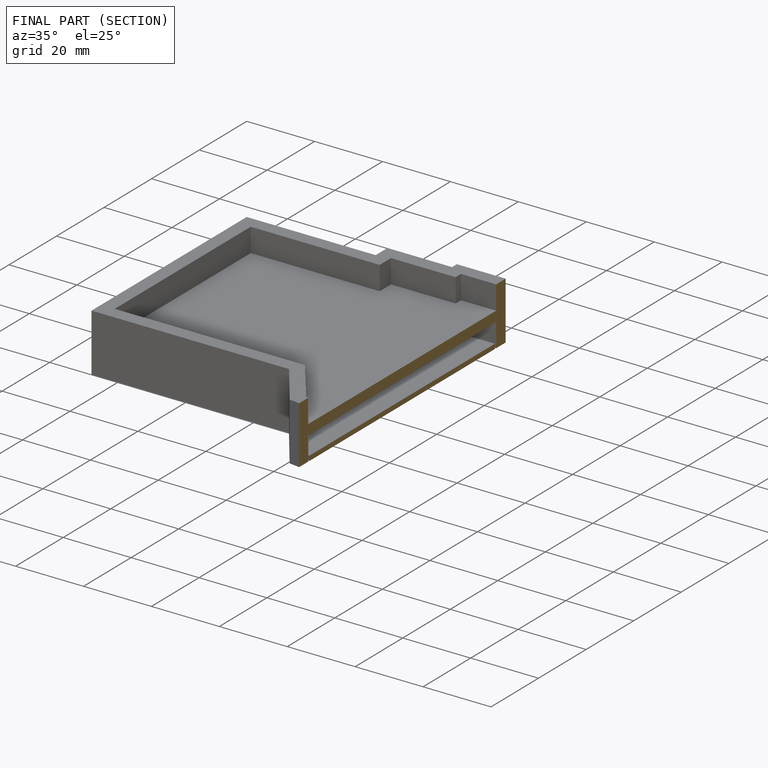
[diagram: finished part — half-section view (interior)]
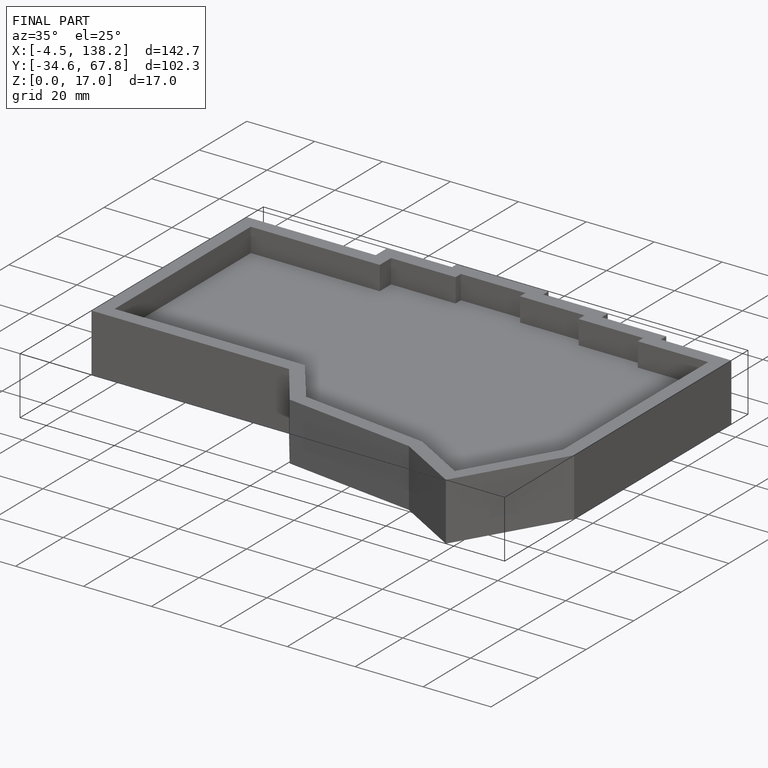
[diagram: finished part — iso view with bounding-box wireframe]
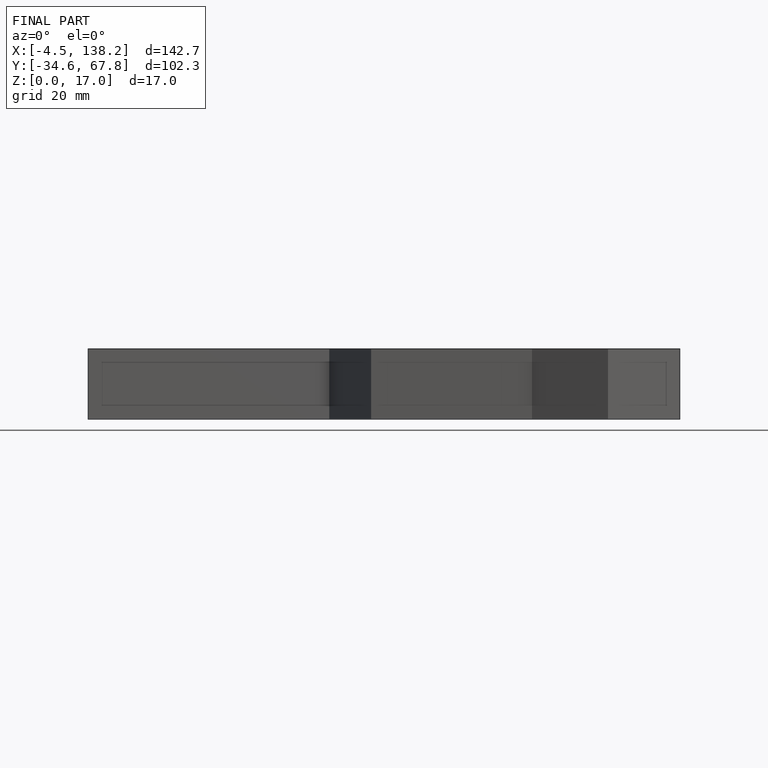
[diagram: finished part — front view with bounding-box wireframe]
